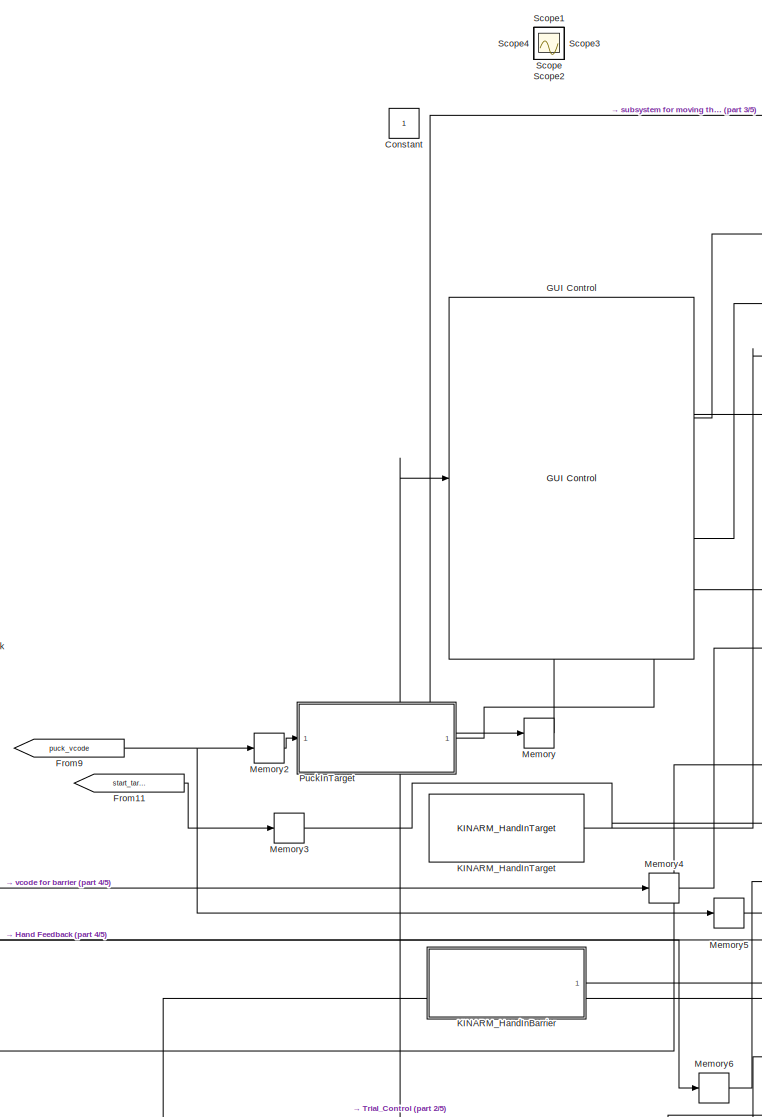
[diagram: root canvas - part 1/5, top left region]
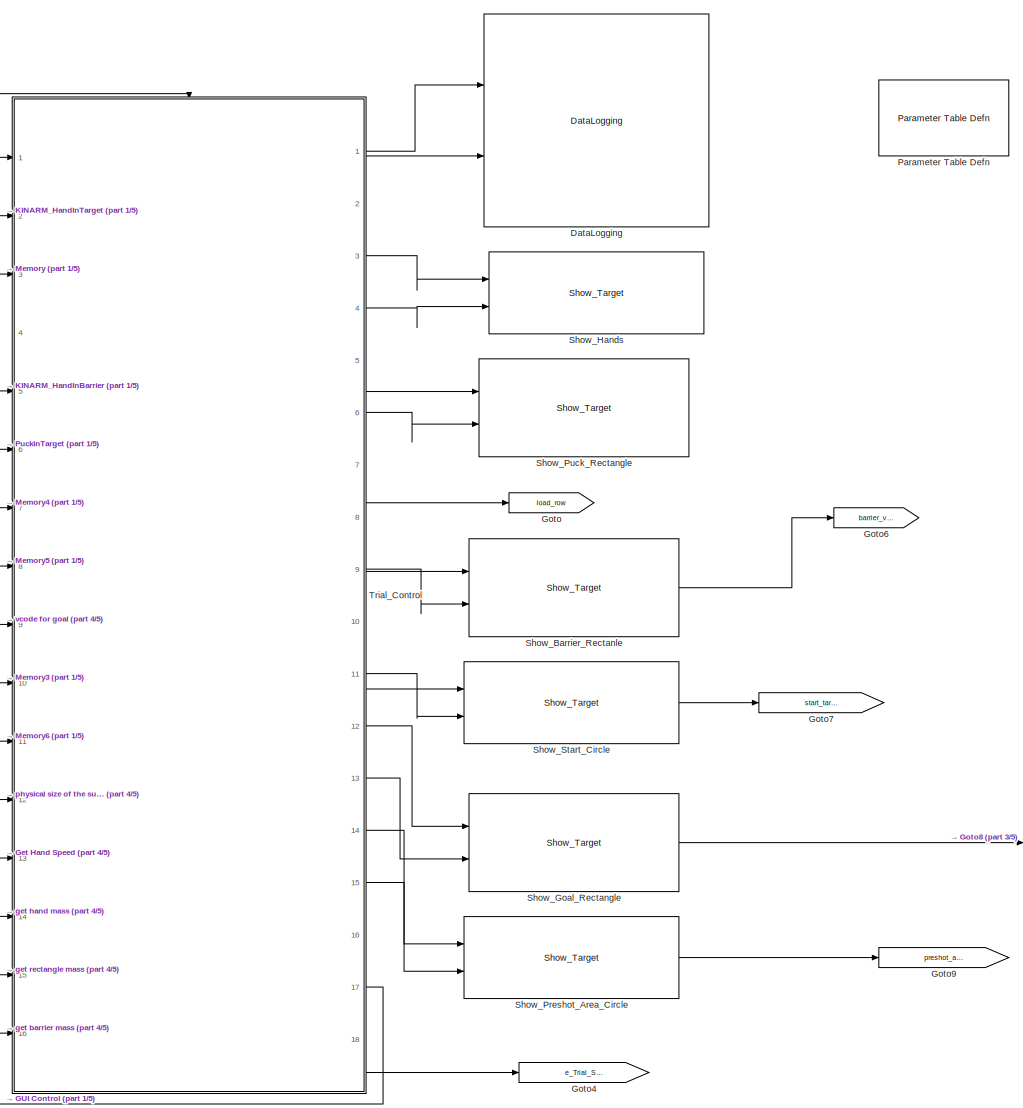
[diagram: root canvas - part 2/5, central region]
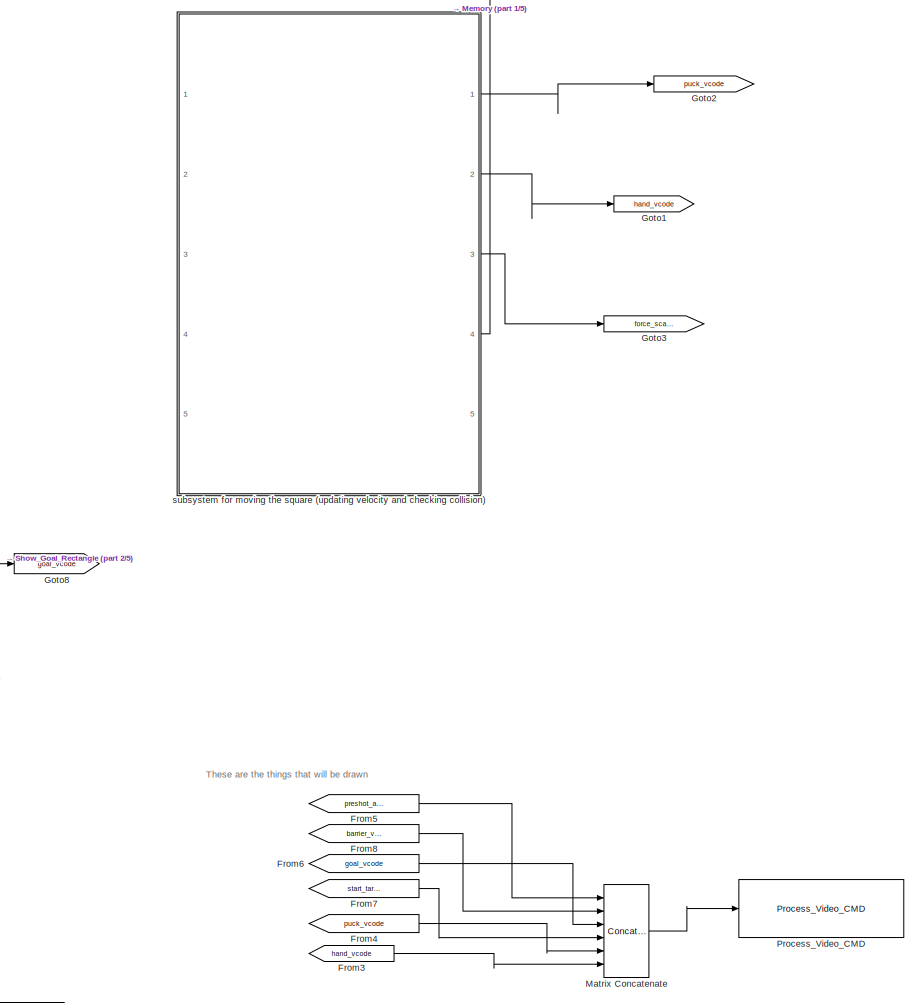
[diagram: root canvas - part 3/5, middle right region]
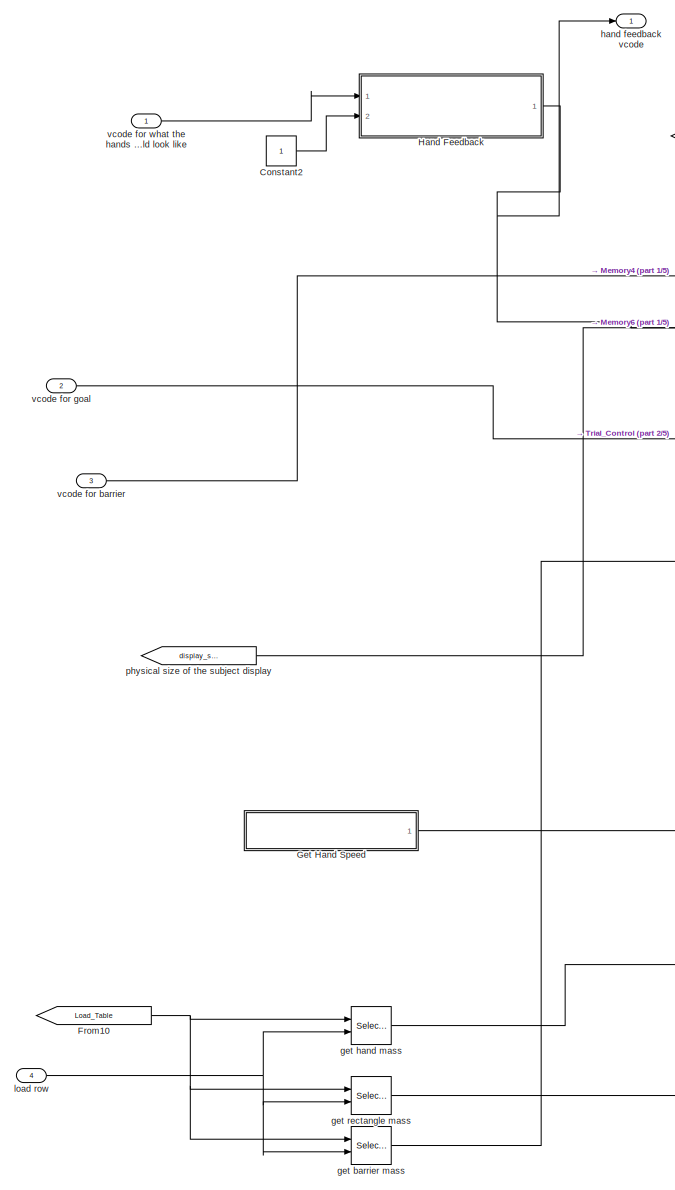
[diagram: root canvas - part 4/5, bottom left region]
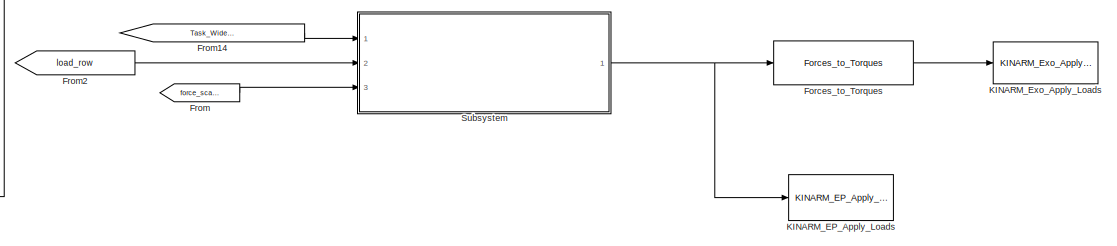
[diagram: root canvas - part 5/5, bottom center region]
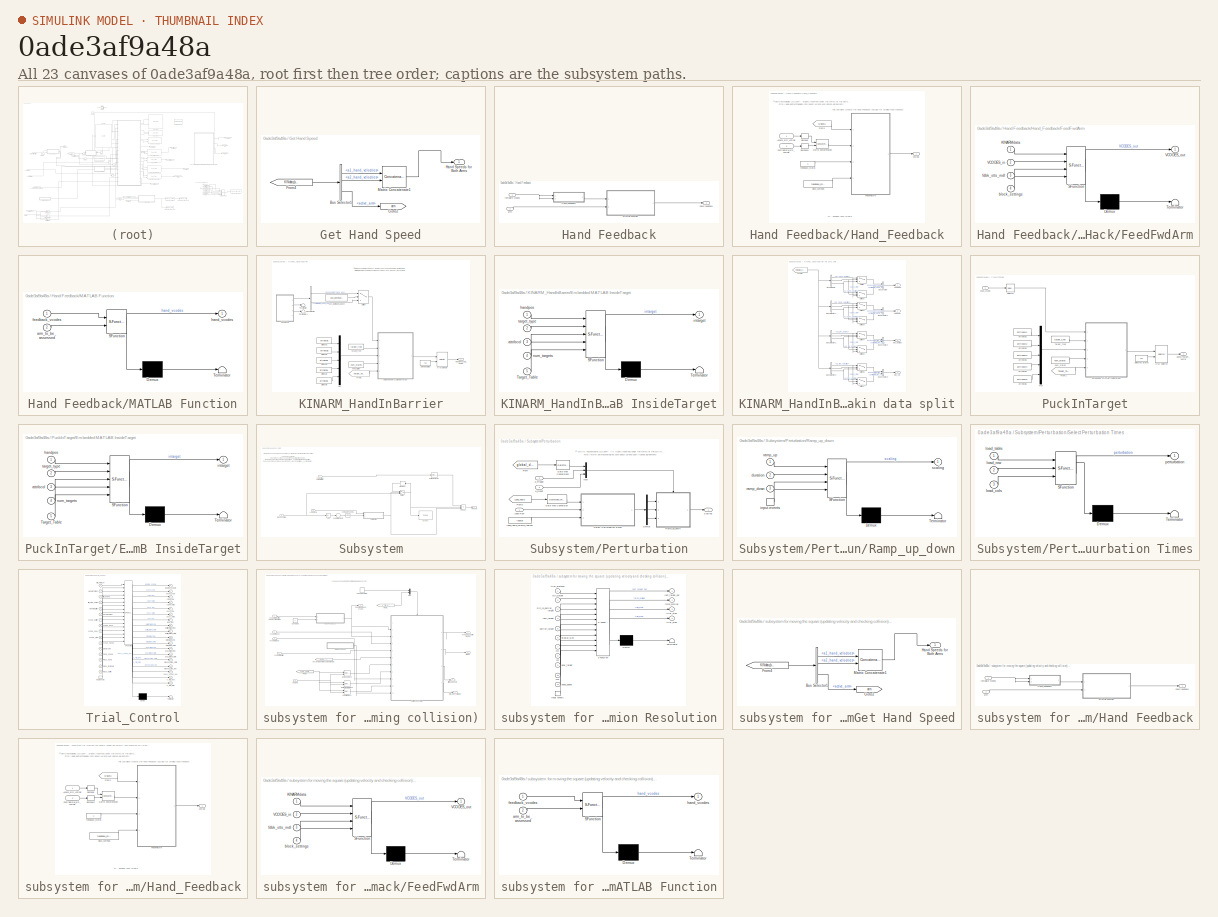
[diagram: thumbnail index - all 23 canvases of the model, root first then tree order]
MODEL slx_0ade3af9a48a
KIND model
CONFIG AbsTol = auto
CONFIG FixedStep = BKIN_STEP_TIME
CONFIG MaxStep = auto
CONFIG MinStep = auto
CONFIG RelTol = 1e-3
CONFIG SampleTimeConstraint = Unconstrained
CONFIG Solver = ode4
CONFIG SolverMode = Auto
CONFIG SolverName = ode4
CONFIG StartFcn =  warndlg('Dexterit-E models cannot run under simulation. Please compile your model and run it from within Dexterit-E.');set_param(bdroot,'SimulationCommand','stop')
CONFIG StartTime = 0.0
CONFIG StopTime = inf
WORKSPACE source: MAT-file member
WORKSPACE BARRIER_ROW = 5
BLOCK [Constant] Constant
  IOType = siggen
BLOCK [Constant] Constant2
BLOCK [Reference] DataLogging  REF=General/DataLogging
  Ports = [2]
  RTWMemSecDataConstants = Inherit from model
  RTWMemSecDataInternal = Inherit from model
  RTWMemSecDataParameters = Inherit from model
  RTWMemSecFuncExecute = Inherit from model
  RTWMemSecFuncInitTerm = Inherit from model
  SourceBlock = General/DataLogging
  SourceType = DataLogging
  ecat_include = on
  log_analog_inputs = off
  log_event_codes = on
  show_time_remaining = off
BLOCK [Reference] Forces_to_Torques  REF=KINARM_loads/Forces_to_Torques
  Ports = [1, 1]
  RTWMemSecDataConstants = Inherit from model
  RTWMemSecDataInternal = Inherit from model
  RTWMemSecDataParameters = Inherit from model
  RTWMemSecFuncExecute = Inherit from model
  RTWMemSecFuncInitTerm = Inherit from model
  SourceBlock = KINARM_loads/Forces_to_Torques
  SourceType = Forces_to_Torques
BLOCK [From] From
  GotoTag = force_scaling
BLOCK [From] From10
  GotoTag = Load_Table
  TagVisibility = global
BLOCK [From] From11
  GotoTag = start_target_vcode
BLOCK [From] From14
  GotoTag = Task_Wide_Parameters
  TagVisibility = global
BLOCK [From] From2
  GotoTag = load_row
BLOCK [From] From3
  GotoTag = hand_vcode
BLOCK [From] From4
  GotoTag = puck_vcode
BLOCK [From] From5
  GotoTag = preshot_area_vcode
BLOCK [From] From6
  GotoTag = goal_vcode
BLOCK [From] From7
  GotoTag = start_target_vcode
BLOCK [From] From8
  GotoTag = barrier_vcode
BLOCK [From] From9
  GotoTag = puck_vcode
BLOCK [Reference] GUI Control  REF=General/GUI Control
  Lcols = 4
  Ports = [1, 2]
  RTWMemSecDataConstants = Inherit from model
  RTWMemSecDataInternal = Inherit from model
  RTWMemSecDataParameters = Inherit from model
  RTWMemSecFuncExecute = Inherit from model
  RTWMemSecFuncInitTerm = Inherit from model
  SourceBlock = General/GUI Control
  SourceType = GUI Control
  Target_Type = 1
  Vcols = 3
  XYcols = [1 2]
  indices_padding = [0 0 0 0;0 0 0 0]
  load_table_rows = 20
  show_repeat_trial_flag = off
  target_table_rows = 64
  target_type_str = Circle
  task_version = 1.0
  tp_table_rows = 100
  use_custom_tp = off
BLOCK [SubSystem] Get Hand Speed
  Ports = [0, 1]
  RequestExecContextInheritance = off
BLOCK [BusSelector] Get Hand Speed/Bus Selector1
  OutputSignals = Robot1.a1_hand_velocities,Robot2.a2_hand_velocities,KINDataGeneral.active_arm
  Ports = [1, 3]
BLOCK [From] Get Hand Speed/From4
  GotoTag = KINdata_bus
  TagVisibility = global
BLOCK [Goto] Get Hand Speed/Goto2
  GotoTag = arm
BLOCK [Outport] Get Hand Speed/Hand Speeds for Both Arms
  IconDisplay = Port number
BLOCK [Concatenate] Get Hand Speed/Matrix Concatenate1
  Mode = Multidimensional array
  Ports = [2, 1]
BLOCK [Goto] Goto
  GotoTag = load_row
BLOCK [Goto] Goto1
  GotoTag = hand_vcode
BLOCK [Goto] Goto2
  GotoTag = puck_vcode
BLOCK [Goto] Goto3
  GotoTag = force_scaling
BLOCK [Goto] Goto4
  GotoTag = e_Trial_Start
BLOCK [Goto] Goto6
  GotoTag = barrier_vcode
BLOCK [Goto] Goto7
  GotoTag = start_target_vcode
BLOCK [Goto] Goto8
  GotoTag = goal_vcode
BLOCK [Goto] Goto9
  GotoTag = preshot_area_vcode
BLOCK [SubSystem] Hand Feedback
  Ports = [2, 1]
  RequestExecContextInheritance = off
BLOCK [SubSystem] Hand Feedback/Hand_Feedback
  AncestorBlock = KINARM_general/Hand_Feedback
  Ports = [2, 1]
  RequestExecContextInheritance = off
BLOCK [Inport] Hand Feedback/Hand_Feedback/Assess_arm_VCODE
  IconDisplay = Port number
BLOCK [Inport] Hand Feedback/Hand_Feedback/Contralateral_arm_VCODE
  IconDisplay = Port number
  Port = 2
BLOCK [SubSystem] Hand Feedback/Hand_Feedback/FeedFwdArm
  ErrorFcn = Stateflow.Translate.translate
  PermitHierarchicalResolution = ParametersOnly
  Ports = [4, 1]
  RTWFileNameOpts = Use function name
  RTWSystemCode = Nonreusable function
  RequestExecContextInheritance = off
  SFBlockType = MATLAB Function
  TreatAsAtomicUnit = on
BLOCK [Demux] Hand Feedback/Hand_Feedback/FeedFwdArm/ Demux 
  Outputs = 1
  Ports = [1, 1]
BLOCK [S-Function] Hand Feedback/Hand_Feedback/FeedFwdArm/ SFunction 
  EnableBusSupport = on
  FunctionName = sf_sfun
  PortCounts = [4 2]
  Ports = [4, 2]
  SFunctionDeploymentMode = off
  Tag = Stateflow S-Function may9js 6
BLOCK [Terminator] Hand Feedback/Hand_Feedback/FeedFwdArm/ Terminator 
BLOCK [Inport] Hand Feedback/Hand_Feedback/FeedFwdArm/KINARMdata
  IconDisplay = Port number
BLOCK [Inport] Hand Feedback/Hand_Feedback/FeedFwdArm/VCODES_in
  IconDisplay = Port number
  Port = 2
BLOCK [Outport] Hand Feedback/Hand_Feedback/FeedFwdArm/VCODES_out
  IconDisplay = Port number
BLOCK [Inport] Hand Feedback/Hand_Feedback/FeedFwdArm/block_settings
  IconDisplay = Port number
  Port = 4
BLOCK [Inport] Hand Feedback/Hand_Feedback/FeedFwdArm/fdbk_stts_mdl
  IconDisplay = Port number
  Port = 3
BLOCK [From] Hand Feedback/Hand_Feedback/From1
  CloseFcn = tagdialog Close
  GotoTag = KINdata
  TagVisibility = global
BLOCK [Concatenate] Hand Feedback/Hand_Feedback/Matrix Concatenation
  Mode = Multidimensional array
  Ports = [2, 1]
BLOCK [Reshape] Hand Feedback/Hand_Feedback/Reshape
  OutputDimensionality = Row vector (2-D)
  Ports = [1, 1]
BLOCK [Reshape] Hand Feedback/Hand_Feedback/Reshape1
  OutputDimensionality = Row vector (2-D)
  Ports = [1, 1]
BLOCK [Outport] Hand Feedback/Hand_Feedback/VCODE
  IconDisplay = Port number
BLOCK [Constant] Hand Feedback/Hand_Feedback/block_settings
  Value = feedback_cntl_src
BLOCK [Constant] Hand Feedback/Hand_Feedback/feedback_status
BLOCK [SubSystem] Hand Feedback/MATLAB Function
  ErrorFcn = Stateflow.Translate.translate
  PermitHierarchicalResolution = ParametersOnly
  Ports = [2, 1]
  RequestExecContextInheritance = off
  SFBlockType = MATLAB Function
  TreatAsAtomicUnit = on
BLOCK [Demux] Hand Feedback/MATLAB Function/ Demux 
  Outputs = 1
  Ports = [1, 1]
BLOCK [S-Function] Hand Feedback/MATLAB Function/ SFunction 
  EnableBusSupport = on
  FunctionName = sf_sfun
  PortCounts = [2 2]
  Ports = [2, 2]
  SFunctionDeploymentMode = off
  Tag = Stateflow S-Function may9js 10
BLOCK [Terminator] Hand Feedback/MATLAB Function/ Terminator 
BLOCK [Inport] Hand Feedback/MATLAB Function/arm_to_be_assessed
  IconDisplay = Port number
  Port = 2
BLOCK [Inport] Hand Feedback/MATLAB Function/feedback_vcodes
  IconDisplay = Port number
BLOCK [Outport] Hand Feedback/MATLAB Function/hand_vcodes
  IconDisplay = Port number
BLOCK [Inport] Hand Feedback/arm
  IconDisplay = Port number
  Port = 2
BLOCK [Outport] Hand Feedback/hand feedback
  IconDisplay = Port number
BLOCK [Inport] Hand Feedback/template vcodes
  IconDisplay = Port number
BLOCK [Reference] KINARM_EP_Apply_Loads  REF=KINARM_EP_loads/KINARM_EP_Apply_Loads
  Ports = [1]
  RTWMemSecDataConstants = Inherit from model
  RTWMemSecDataInternal = Inherit from model
  RTWMemSecDataParameters = Inherit from model
  RTWMemSecFuncExecute = Inherit from model
  RTWMemSecFuncInitTerm = Inherit from model
  SourceBlock = KINARM_EP_loads/KINARM_EP_Apply_Loads
  SourceType = KINARM_EP_Apply_Loads
  down_duration = 1500
  max_force = 20
  up_duration = 1500
BLOCK [Reference] KINARM_Exo_Apply_Loads  REF=KINARM_loads/KINARM_Exo_Apply_Loads
  Ports = [1]
  RTWMemSecDataConstants = Inherit from model
  RTWMemSecDataInternal = Inherit from model
  RTWMemSecDataParameters = Inherit from model
  RTWMemSecFuncExecute = Inherit from model
  RTWMemSecFuncInitTerm = Inherit from model
  SourceBlock = KINARM_loads/KINARM_Exo_Apply_Loads
  SourceType = KINARM_Exo_Apply_Loads
  down_duration = 1500
  limit_motors = off
  max_torque = 5
  up_duration = 1500
BLOCK [SubSystem] KINARM_HandInBarrier
  AncestorBlock = KINARM_general/KINARM_HandInTarget
  Ports = [0, 1]
  RequestExecContextInheritance = off
BLOCK [Selector] KINARM_HandInBarrier/Array Selector
  IndexOptions = Select all,Index vector (port)
  Indices = -1,1
  InputPortWidth = 3
  NumberOfDimensions = 2
  OutputSizes = slselsubs([(-2),(-2)],1),slselsubs([(-2),(-2)],2)
  Ports = [2, 1]
BLOCK [BusSelector] KINARM_HandInBarrier/Bus Selector
  OutputSignals = assessment_hand_pos,contralateral_hand_pos
  Ports = [1, 2]
BLOCK [SubSystem] KINARM_HandInBarrier/Embedded MATLAB InsideTarget
  ErrorFcn = Stateflow.Translate.translate
  PermitHierarchicalResolution = ParametersOnly
  Ports = [5, 1]
  RTWFileNameOpts = Use function name
  RTWSystemCode = Nonreusable function
  RequestExecContextInheritance = off
  SFBlockType = MATLAB Function
  TreatAsAtomicUnit = on
BLOCK [Demux] KINARM_HandInBarrier/Embedded MATLAB InsideTarget/ Demux 
  Outputs = 1
  Ports = [1, 1]
BLOCK [S-Function] KINARM_HandInBarrier/Embedded MATLAB InsideTarget/ SFunction 
  EnableBusSupport = on
  FunctionName = sf_sfun
  PortCounts = [5 2]
  Ports = [5, 2]
  SFunctionDeploymentMode = off
  Tag = Stateflow S-Function may9js 7
BLOCK [Terminator] KINARM_HandInBarrier/Embedded MATLAB InsideTarget/ Terminator 
BLOCK [Inport] KINARM_HandInBarrier/Embedded MATLAB InsideTarget/Target_Table
  IconDisplay = Port number
  Port = 5
BLOCK [Inport] KINARM_HandInBarrier/Embedded MATLAB InsideTarget/attribcol
  IconDisplay = Port number
  Port = 3
BLOCK [Inport] KINARM_HandInBarrier/Embedded MATLAB InsideTarget/handpos
  IconDisplay = Port number
BLOCK [Outport] KINARM_HandInBarrier/Embedded MATLAB InsideTarget/intarget
  IconDisplay = Port number
BLOCK [Inport] KINARM_HandInBarrier/Embedded MATLAB InsideTarget/num_targets
  IconDisplay = Port number
  Port = 4
BLOCK [Inport] KINARM_HandInBarrier/Embedded MATLAB InsideTarget/target_type
  IconDisplay = Port number
  Port = 2
BLOCK [From] KINARM_HandInBarrier/From1
  CloseFcn = tagdialog Close
  GotoTag = Target_Table
  TagVisibility = global
BLOCK [Outport] KINARM_HandInBarrier/HandInTarget_Vector
  IconDisplay = Port number
BLOCK [Mux] KINARM_HandInBarrier/Mux
  DisplayOption = bar
  Inputs = 5
  Ports = [5, 1]
BLOCK [Constant] KINARM_HandInBarrier/Selected States
  Value = [1]
BLOCK [Switch] KINARM_HandInBarrier/Switch
  Criteria = u2 > Threshold
  InputSameDT = off
  SaturateOnIntegerOverflow = off
BLOCK [Constant] KINARM_HandInBarrier/Target_Type
  Value = target_type
BLOCK [Terminator] KINARM_HandInBarrier/Terminator
BLOCK [Terminator] KINARM_HandInBarrier/Terminator1
BLOCK [Constant] KINARM_HandInBarrier/Use_Dominant_Hand?
  Value = use_dominant_hand
BLOCK [Constant] KINARM_HandInBarrier/attribcol1
  Value = attribcol1
BLOCK [Constant] KINARM_HandInBarrier/attribcol2
  Value = attribcol2
BLOCK [Constant] KINARM_HandInBarrier/attribcol3
  Value = attribcol3
BLOCK [Constant] KINARM_HandInBarrier/attribcol4
  Value = attribcol4
BLOCK [Constant] KINARM_HandInBarrier/attribcol5
  Value = attribcol5
BLOCK [SubSystem] KINARM_HandInBarrier/kin data split
  Ports = [0, 4]
  RequestExecContextInheritance = off
BLOCK [BusCreator] KINARM_HandInBarrier/kin data split/Bus Creator
  DisplayOption = bar
  InheritFromInputs = on
  Inputs = 2
  Ports = [2, 1]
BLOCK [BusCreator] KINARM_HandInBarrier/kin data split/Bus Creator1
  DisplayOption = bar
  InheritFromInputs = on
  Inputs = 2
  Ports = [2, 1]
BLOCK [BusCreator] KINARM_HandInBarrier/kin data split/Bus Creator2
  DisplayOption = bar
  InheritFromInputs = on
  Inputs = 2
  Ports = [2, 1]
BLOCK [BusCreator] KINARM_HandInBarrier/kin data split/Bus Creator3
  DisplayOption = bar
  InheritFromInputs = on
  Inputs = 2
  Ports = [2, 1]
BLOCK [BusSelector] KINARM_HandInBarrier/kin data split/Bus Selector
  OutputSignals = Robot2.a2_hand_position,KINDataGeneral.active_arm,Robot1.a1_hand_position
  Ports = [1, 3]
BLOCK [BusSelector] KINARM_HandInBarrier/kin data split/Bus Selector1
  OutputSignals = Robot2.a2_hand_velocities,KINDataGeneral.active_arm,Robot1.a1_hand_velocities
  Ports = [1, 3]
BLOCK [BusSelector] KINARM_HandInBarrier/kin data split/Bus Selector2
  OutputSignals = Robot2.a2_link_angles,KINDataGeneral.active_arm,Robot1.a1_link_angles
  Ports = [1, 3]
BLOCK [BusSelector] KINARM_HandInBarrier/kin data split/Bus Selector3
  OutputSignals = Robot2.a2_link_velocities,KINDataGeneral.active_arm,Robot1.a1_link_velocities
  Ports = [1, 3]
BLOCK [From] KINARM_HandInBarrier/kin data split/From1
  CloseFcn = tagdialog Close
  GotoTag = KINdata_bus
  TagVisibility = global
BLOCK [Switch] KINARM_HandInBarrier/kin data split/Switch
  Criteria = u2 > Threshold
  InputSameDT = off
  SaturateOnIntegerOverflow = off
  Threshold = 1
BLOCK [Switch] KINARM_HandInBarrier/kin data split/Switch1
  Criteria = u2 > Threshold
  InputSameDT = off
  SaturateOnIntegerOverflow = off
  Threshold = 1
BLOCK [Switch] KINARM_HandInBarrier/kin data split/Switch2
  Criteria = u2 > Threshold
  InputSameDT = off
  SaturateOnIntegerOverflow = off
  Threshold = 1
BLOCK [Switch] KINARM_HandInBarrier/kin data split/Switch3
  Criteria = u2 > Threshold
  InputSameDT = off
  SaturateOnIntegerOverflow = off
  Threshold = 1
BLOCK [Switch] KINARM_HandInBarrier/kin data split/Switch4
  Criteria = u2 > Threshold
  InputSameDT = off
  SaturateOnIntegerOverflow = off
  Threshold = 1
BLOCK [Switch] KINARM_HandInBarrier/kin data split/Switch5
  Criteria = u2 > Threshold
  InputSameDT = off
  SaturateOnIntegerOverflow = off
  Threshold = 1
BLOCK [Switch] KINARM_HandInBarrier/kin data split/Switch6
  Criteria = u2 > Threshold
  InputSameDT = off
  SaturateOnIntegerOverflow = off
  Threshold = 1
BLOCK [Switch] KINARM_HandInBarrier/kin data split/Switch7
  Criteria = u2 > Threshold
  InputSameDT = off
  SaturateOnIntegerOverflow = off
  Threshold = 1
BLOCK [Outport] KINARM_HandInBarrier/kin data split/hand pos
  IconDisplay = Port number
BLOCK [Outport] KINARM_HandInBarrier/kin data split/hand vel
  IconDisplay = Port number
  Port = 2
BLOCK [Outport] KINARM_HandInBarrier/kin data split/link_angles
  IconDisplay = Port number
  Port = 3
BLOCK [Outport] KINARM_HandInBarrier/kin data split/link_vel
  IconDisplay = Port number
  Port = 4
BLOCK [Constant] KINARM_HandInBarrier/num_states
  Value = num_states
BLOCK [Reference] KINARM_HandInTarget  REF=KINARM_general/KINARM_HandInTarget
  Ports = [0, 1]
  RTWMemSecDataConstants = Inherit from model
  RTWMemSecDataInternal = Inherit from model
  RTWMemSecDataParameters = Inherit from model
  RTWMemSecFuncExecute = Inherit from model
  RTWMemSecFuncInitTerm = Inherit from model
  SourceBlock = KINARM_general/KINARM_HandInTarget
  SourceType = KINARM_HandInTarget
  attribcol1 = [RADIUS_LOG]
  attribcol2 = [0]
  attribcol3 = [0]
  attribcol4 = [0]
  attribcol5 = [0]
  num_states = 1
  target_type = Circle
  use_dominant_hand = on
BLOCK [Concatenate] Matrix Concatenate
  Mode = Multidimensional array
  NumInputs = 6
  Ports = [6, 1]
BLOCK [Memory] Memory
BLOCK [Memory] Memory2
BLOCK [Memory] Memory3
BLOCK [Memory] Memory4
BLOCK [Memory] Memory5
BLOCK [Memory] Memory6
BLOCK [Reference] Parameter Table Defn  REF=General/Parameter Table Defn
  Ports = []
  RTWMemSecDataConstants = Inherit from model
  RTWMemSecDataInternal = Inherit from model
  RTWMemSecDataParameters = Inherit from model
  RTWMemSecFuncExecute = Inherit from model
  RTWMemSecFuncInitTerm = Inherit from model
  ShowInLibBrowser = 0
  SourceBlock = General/Parameter Table Defn
  UserDataPersistent = on
BLOCK [Reference] Process_Video_CMD  REF=Video/Process_Video_CMD
  Ports = [1]
  RTWMemSecDataConstants = Inherit from model
  RTWMemSecDataInternal = Inherit from model
  RTWMemSecDataParameters = Inherit from model
  RTWMemSecFuncExecute = Inherit from model
  RTWMemSecFuncInitTerm = Inherit from model
  SourceBlock = Video/Process_Video_CMD
  SourceType = Process_Video_CMD
  video_delay = 0
BLOCK [SubSystem] PuckInTarget
  AncestorBlock = KINARM_general/KINARM_HandInTarget
  Ports = [1, 1]
  RequestExecContextInheritance = off
BLOCK [Selector] PuckInTarget/Array Selector
  IndexOptions = Select all,Index vector (port)
  Indices = -1,1
  InputPortWidth = 3
  NumberOfDimensions = 2
  OutputSizes = slselsubs([(-2),(-2)],1),slselsubs([(-2),(-2)],2)
  Ports = [2, 1]
BLOCK [SubSystem] PuckInTarget/Embedded MATLAB InsideTarget
  ErrorFcn = Stateflow.Translate.translate
  PermitHierarchicalResolution = ParametersOnly
  Ports = [5, 1]
  RTWFileNameOpts = Use function name
  RTWSystemCode = Nonreusable function
  RequestExecContextInheritance = off
  SFBlockType = MATLAB Function
  TreatAsAtomicUnit = on
BLOCK [Demux] PuckInTarget/Embedded MATLAB InsideTarget/ Demux 
  Outputs = 1
  Ports = [1, 1]
BLOCK [S-Function] PuckInTarget/Embedded MATLAB InsideTarget/ SFunction 
  EnableBusSupport = on
  FunctionName = sf_sfun
  PortCounts = [5 2]
  Ports = [5, 2]
  SFunctionDeploymentMode = off
  Tag = Stateflow S-Function may9js 5
BLOCK [Terminator] PuckInTarget/Embedded MATLAB InsideTarget/ Terminator 
BLOCK [Inport] PuckInTarget/Embedded MATLAB InsideTarget/Target_Table
  IconDisplay = Port number
  Port = 5
BLOCK [Inport] PuckInTarget/Embedded MATLAB InsideTarget/attribcol
  IconDisplay = Port number
  Port = 3
BLOCK [Inport] PuckInTarget/Embedded MATLAB InsideTarget/handpos
  IconDisplay = Port number
BLOCK [Outport] PuckInTarget/Embedded MATLAB InsideTarget/intarget
  IconDisplay = Port number
BLOCK [Inport] PuckInTarget/Embedded MATLAB InsideTarget/num_targets
  IconDisplay = Port number
  Port = 4
BLOCK [Inport] PuckInTarget/Embedded MATLAB InsideTarget/target_type
  IconDisplay = Port number
  Port = 2
BLOCK [From] PuckInTarget/From1
  CloseFcn = tagdialog Close
  GotoTag = Target_Table
  TagVisibility = global
BLOCK [Outport] PuckInTarget/HandInTarget_Vector
  IconDisplay = Port number
BLOCK [Mux] PuckInTarget/Mux
  DisplayOption = bar
  Inputs = 5
  Ports = [5, 1]
BLOCK [Constant] PuckInTarget/Selected States
  Value = [1]
BLOCK [Selector] PuckInTarget/Selector
  IndexOptions = Index vector (dialog),Index vector (dialog)
  Indices = 1,[3,4]
  InputPortWidth = 3
  NumberOfDimensions = 2
  OutputSizes = 1,1
  Ports = [1, 1]
BLOCK [Constant] PuckInTarget/Target_Type
  Value = target_type
BLOCK [Constant] PuckInTarget/attribcol1
  Value = attribcol1
BLOCK [Constant] PuckInTarget/attribcol2
  Value = attribcol2
BLOCK [Constant] PuckInTarget/attribcol3
  Value = attribcol3
BLOCK [Constant] PuckInTarget/attribcol4
  Value = attribcol4
BLOCK [Constant] PuckInTarget/attribcol5
  Value = attribcol5
BLOCK [Constant] PuckInTarget/num_states
  Value = num_states
BLOCK [Inport] PuckInTarget/puck_vcode
  IconDisplay = Port number
  PortDimensions = [1,70]
BLOCK [Scope] Scope
  DataFormat = StructureWithTime
  Decimation = 1
  Floating = off
  Grid = on
  IOType = viewer
  LimitDataPoints = off
  MaxDataPoints = 5000
  NumInputPorts = 1
  Ports = []
  SampleInput = off
  SampleTime = -1
  SaveName = ScopeData
  SaveToWorkspace = off
  ShowLegends = off
  TickLabels = OneTimeTick
  TimeRange = auto
  YMax = 10.00000
  YMin = -10.00000
  ZoomMode = on
BLOCK [Scope] Scope1
  DataFormat = StructureWithTime
  Decimation = 1
  Floating = off
  Grid = on
  IOType = viewer
  LimitDataPoints = off
  MaxDataPoints = 5000
  NumInputPorts = 1
  Ports = []
  SampleInput = off
  SampleTime = -1
  SaveName = ScopeData1
  SaveToWorkspace = off
  ShowLegends = off
  TickLabels = OneTimeTick
  TimeRange = auto
  YMax = 10.00000
  YMin = -10.00000
  ZoomMode = on
BLOCK [Scope] Scope2
  DataFormat = StructureWithTime
  Decimation = 1
  Floating = off
  Grid = on
  IOType = viewer
  LimitDataPoints = off
  MaxDataPoints = 5000
  NumInputPorts = 1
  Ports = []
  SampleInput = off
  SampleTime = -1
  SaveName = ScopeData2
  SaveToWorkspace = off
  ShowLegends = off
  TickLabels = OneTimeTick
  TimeRange = auto
  YMax = 10.00000
  YMin = -10.00000
  ZoomMode = on
BLOCK [Scope] Scope3
  DataFormat = StructureWithTime
  Decimation = 1
  Floating = off
  Grid = on
  IOType = viewer
  LimitDataPoints = off
  MaxDataPoints = 5000
  NumInputPorts = 1
  Ports = []
  SampleInput = off
  SampleTime = -1
  SaveName = ScopeData3
  SaveToWorkspace = off
  ShowLegends = off
  TickLabels = OneTimeTick
  TimeRange = auto
  YMax = 10.00000
  YMin = -10.00000
  ZoomMode = on
BLOCK [Scope] Scope4
  DataFormat = StructureWithTime
  Decimation = 1
  Floating = off
  Grid = on
  IOType = viewer
  LimitDataPoints = off
  MaxDataPoints = 5000
  NumInputPorts = 1
  Ports = []
  SampleInput = off
  SampleTime = -1
  SaveName = ScopeData4
  SaveToWorkspace = off
  ShowLegends = off
  TickLabels = OneTimeTick
  TimeRange = auto
  YMax = 10.00000
  YMin = -10.00000
  ZoomMode = on
BLOCK [Reference] Show_Barrier_Rectanle  REF=Video/Show_Target
  Ports = [2, 1]
  RTWMemSecDataConstants = Inherit from model
  RTWMemSecDataInternal = Inherit from model
  RTWMemSecDataParameters = Inherit from model
  RTWMemSecFuncExecute = Inherit from model
  RTWMemSecFuncInitTerm = Inherit from model
  SourceBlock = Video/Show_Target
  SourceType = Show_Target
  attribcol1 = [FIRST_STATE_FILL RECT_STROKE RECT_STROKE_W WIDTH HEIGHT ROTATION]
  attribcol2 = [SECOND_STATE_FILL RECT_STROKE RECT_STROKE_W WIDTH HEIGHT ROTATION]
  attribcol3 = [0 0 0 0 0 0]
  attribcol4 = [0 0 0 0 0 0]
  attribcol5 = [0 0 0 0 0 0]
  num_col = 6
  num_states = 2
  opacity = 100
  source = dialog
  stateindices_padding = [0 0 0 0 0;0 0 0 0 0;0 0 0 0 0;0 0 0 0 0;0 0 0 0 0]
  target_display = Both subject and operator displays
  target_type = Rectangle
BLOCK [Reference] Show_Goal_Rectangle  REF=Video/Show_Target
  Ports = [2, 1]
  RTWMemSecDataConstants = Inherit from model
  RTWMemSecDataInternal = Inherit from model
  RTWMemSecDataParameters = Inherit from model
  RTWMemSecFuncExecute = Inherit from model
  RTWMemSecFuncInitTerm = Inherit from model
  SourceBlock = Video/Show_Target
  SourceType = Show_Target
  attribcol1 = [INVISIBLE_FILL RECT_STROKE RECT_STROKE_W WIDTH HEIGHT ROTATION]
  attribcol2 = [FIRST_STATE_FILL RECT_STROKE RECT_STROKE_W WIDTH HEIGHT ROTATION]
  attribcol3 = [SECOND_STATE_FILL RECT_STROKE RECT_STROKE_W WIDTH HEIGHT ROTATION]
  attribcol4 = [0 0 0 0 0 0]
  attribcol5 = [0 0 0 0 0 0]
  num_col = 6
  num_states = 3
  opacity = 100
  source = dialog
  stateindices_padding = [0 0 0 0 0;0 0 0 0 0;0 0 0 0 0;0 0 0 0 0;0 0 0 0 0]
  target_display = Both subject and operator displays
  target_type = Rectangle
BLOCK [Reference] Show_Hands  REF=Video/Show_Target
  Ports = [2, 1]
  RTWMemSecDataConstants = Inherit from model
  RTWMemSecDataInternal = Inherit from model
  RTWMemSecDataParameters = Inherit from model
  RTWMemSecFuncExecute = Inherit from model
  RTWMemSecFuncInitTerm = Inherit from model
  SourceBlock = Video/Show_Target
  SourceType = Show_Target
  attribcol1 = [FIRST_STATE_FILL CIRCLE_STROKE CIRCLE_STROKE_W WIDTH]
  attribcol2 = [SECOND_STATE_FILL CIRCLE_STROKE CIRCLE_STROKE_W WIDTH]
  attribcol3 = [0 0 0 0]
  attribcol4 = [0 0 0 0]
  attribcol5 = [0 0 0 0]
  num_col = 4
  num_states = 2
  opacity = 100
  source = dialog
  stateindices_padding = [0 0 0 0 0 0 0;0 0 0 0 0 0 0;0 0 0 0 0 0 0;0 0 0 0 0 0 0;0 0 0 0 0 0 0]
  target_display = Both subject and operator displays
  target_type = Circle
BLOCK [Reference] Show_Preshot_Area_Circle  REF=Video/Show_Target
  Ports = [2, 1]
  RTWMemSecDataConstants = Inherit from model
  RTWMemSecDataInternal = Inherit from model
  RTWMemSecDataParameters = Inherit from model
  RTWMemSecFuncExecute = Inherit from model
  RTWMemSecFuncInitTerm = Inherit from model
  SourceBlock = Video/Show_Target
  SourceType = Show_Target
  attribcol1 = [INVISIBLE_FILL CIRCLE_STROKE CIRCLE_STROKE_W WIDTH]
  attribcol2 = [FIRST_STATE_FILL CIRCLE_STROKE CIRCLE_STROKE_W WIDTH]
  attribcol3 = [SECOND_STATE_FILL CIRCLE_STROKE CIRCLE_STROKE_W WIDTH]
  attribcol4 = [0 0 0 0]
  attribcol5 = [0 0 0 0]
  num_col = 4
  num_states = 3
  opacity = 100
  source = dialog
  stateindices_padding = [0 0 0 0 0 0 0;0 0 0 0 0 0 0;0 0 0 0 0 0 0;0 0 0 0 0 0 0;0 0 0 0 0 0 0]
  target_display = Both subject and operator displays
  target_type = Circle
BLOCK [Reference] Show_Puck_Rectangle  REF=Video/Show_Target
  Ports = [2, 1]
  RTWMemSecDataConstants = Inherit from model
  RTWMemSecDataInternal = Inherit from model
  RTWMemSecDataParameters = Inherit from model
  RTWMemSecFuncExecute = Inherit from model
  RTWMemSecFuncInitTerm = Inherit from model
  SourceBlock = Video/Show_Target
  SourceType = Show_Target
  attribcol1 = [INVISIBLE_FILL RECT_STROKE RECT_STROKE_W WIDTH HEIGHT ROTATION]
  attribcol2 = [FIRST_STATE_FILL RECT_STROKE RECT_STROKE_W WIDTH HEIGHT ROTATION]
  attribcol3 = [SECOND_STATE_FILL RECT_STROKE RECT_STROKE_W WIDTH HEIGHT ROTATION]
  attribcol4 = [0 0 0 0 0 0]
  attribcol5 = [0 0 0 0 0 0]
  num_col = 6
  num_states = 3
  opacity = 100
  source = dialog
  stateindices_padding = [0 0 0 0 0;0 0 0 0 0;0 0 0 0 0;0 0 0 0 0;0 0 0 0 0]
  target_display = Both subject and operator displays
  target_type = Rectangle
BLOCK [Reference] Show_Start_Circle  REF=Video/Show_Target
  Ports = [2, 1]
  RTWMemSecDataConstants = Inherit from model
  RTWMemSecDataInternal = Inherit from model
  RTWMemSecDataParameters = Inherit from model
  RTWMemSecFuncExecute = Inherit from model
  RTWMemSecFuncInitTerm = Inherit from model
  SourceBlock = Video/Show_Target
  SourceType = Show_Target
  attribcol1 = [INVISIBLE_FILL CIRCLE_STROKE CIRCLE_STROKE_W WIDTH]
  attribcol2 = [FIRST_STATE_FILL CIRCLE_STROKE CIRCLE_STROKE_W WIDTH]
  attribcol3 = [SECOND_STATE_FILL CIRCLE_STROKE CIRCLE_STROKE_W WIDTH]
  attribcol4 = [0 0 0 0]
  attribcol5 = [0 0 0 0]
  num_col = 4
  num_states = 3
  opacity = 100
  source = dialog
  stateindices_padding = [0 0 0 0 0 0 0;0 0 0 0 0 0 0;0 0 0 0 0 0 0;0 0 0 0 0 0 0;0 0 0 0 0 0 0]
  target_display = Both subject and operator displays
  target_type = Circle
BLOCK [SubSystem] Subsystem
  Ports = [3, 1]
  RequestExecContextInheritance = off
BLOCK [Abs] Subsystem/Abs
  SaturateOnIntegerOverflow = off
BLOCK [Reference] Subsystem/Compare To Zero1  REF=simulink/Logic and Bit
Operations/Compare
To Zero
  OutDataTypeStr = uint8
  Ports = [1, 1]
  RTWMemSecDataConstants = Inherit from model
  RTWMemSecDataInternal = Inherit from model
  RTWMemSecDataParameters = Inherit from model
  RTWMemSecFuncExecute = Inherit from model
  RTWMemSecFuncInitTerm = Inherit from model
  SourceBlock = simulink/Logic and Bit\nOperations/Compare\nTo Zero
  SourceType = Compare To Zero
  ZeroCross = off
  relop = ~=
BLOCK [Inport] Subsystem/Load Row
  IconDisplay = Port number
  Port = 2
BLOCK [Memory] Subsystem/Memory3
  InheritSampleTime = on
BLOCK [SubSystem] Subsystem/Perturbation
  AncestorBlock = KINARM_loads/Perturbation
  Ports = [3, 1]
  RequestExecContextInheritance = off
BLOCK [DataTypeConversion] Subsystem/Perturbation/Data Type Conversion
  RndMeth = Floor
  SaturateOnIntegerOverflow = off
BLOCK [DataTypeConversion] Subsystem/Perturbation/Data Type Conversion2
  RndMeth = Floor
  SaturateOnIntegerOverflow = off
BLOCK [Demux] Subsystem/Perturbation/Demux
  DisplayOption = bar
  Outputs = 3
  Ports = [1, 3]
BLOCK [From] Subsystem/Perturbation/From
  CloseFcn = tagdialog Close
  GotoTag = global_clock
  TagVisibility = global
BLOCK [From] Subsystem/Perturbation/From2
  CloseFcn = tagdialog Close
  GotoTag = Load_Table
  TagVisibility = global
BLOCK [Inport] Subsystem/Perturbation/Load Row
  IconDisplay = Port number
BLOCK [Mux] Subsystem/Perturbation/Mux
  DisplayOption = bar
  Inputs = 3
  Ports = [3, 1]
BLOCK [SubSystem] Subsystem/Perturbation/Ramp_up_down
  ErrorFcn = Stateflow.Translate.translate
  PermitHierarchicalResolution = ParametersOnly
  Ports = [3, 1, 0, 1]
  RequestExecContextInheritance = off
  SFBlockType = Chart
  TreatAsAtomicUnit = on
BLOCK [Demux] Subsystem/Perturbation/Ramp_up_down/ Demux 
  Outputs = 1
  Ports = [1, 1]
BLOCK [S-Function] Subsystem/Perturbation/Ramp_up_down/ SFunction 
  EnableBusSupport = on
  FunctionName = sf_sfun
  PortCounts = [4 2]
  Ports = [4, 2]
  SFunctionDeploymentMode = off
  Tag = Stateflow S-Function may9js 8
BLOCK [Terminator] Subsystem/Perturbation/Ramp_up_down/ Terminator 
BLOCK [TriggerPort] Subsystem/Perturbation/Ramp_up_down/ input events 
  Ports = [0, 1]
  ShowOutputPort = on
  TriggerType = either
BLOCK [Inport] Subsystem/Perturbation/Ramp_up_down/duration
  IconDisplay = Port number
  Port = 2
BLOCK [Inport] Subsystem/Perturbation/Ramp_up_down/ramp_down
  IconDisplay = Port number
  Port = 3
BLOCK [Inport] Subsystem/Perturbation/Ramp_up_down/ramp_up
  IconDisplay = Port number
BLOCK [Outport] Subsystem/Perturbation/Ramp_up_down/scaling
  IconDisplay = Port number
BLOCK [Outport] Subsystem/Perturbation/Scaling
  IconDisplay = Port number
BLOCK [SubSystem] Subsystem/Perturbation/Select Perturbation Times
  ErrorFcn = Stateflow.Translate.translate
  PermitHierarchicalResolution = ParametersOnly
  Ports = [3, 1]
  RequestExecContextInheritance = off
  SFBlockType = MATLAB Function
  TreatAsAtomicUnit = on
BLOCK [Demux] Subsystem/Perturbation/Select Perturbation Times/ Demux 
  Outputs = 1
  Ports = [1, 1]
BLOCK [S-Function] Subsystem/Perturbation/Select Perturbation Times/ SFunction 
  EnableBusSupport = on
  FunctionName = sf_sfun
  PortCounts = [3 2]
  Ports = [3, 2]
  SFunctionDeploymentMode = off
  Tag = Stateflow S-Function may9js 9
BLOCK [Terminator] Subsystem/Perturbation/Select Perturbation Times/ Terminator 
BLOCK [Inport] Subsystem/Perturbation/Select Perturbation Times/load_cols
  IconDisplay = Port number
  Port = 3
BLOCK [Inport] Subsystem/Perturbation/Select Perturbation Times/load_row
  IconDisplay = Port number
  Port = 2
BLOCK [Inport] Subsystem/Perturbation/Select Perturbation Times/load_table
  IconDisplay = Port number
BLOCK [Outport] Subsystem/Perturbation/Select Perturbation Times/perturbation
  IconDisplay = Port number
BLOCK [Inport] Subsystem/Perturbation/e_Reset
  IconDisplay = Port number
  Port = 3
BLOCK [Inport] Subsystem/Perturbation/e_Trigger
  IconDisplay = Port number
  Port = 2
BLOCK [Constant] Subsystem/Perturbation/load_table_column_indices
  Value = loadcol
BLOCK [Product] Subsystem/Product
  InputSameDT = off
  Inputs = 3
  OutDataTypeStr = Inherit: Inherit via internal rule
  Ports = [3, 1]
  RndMeth = Floor
  SaturateOnIntegerOverflow = off
BLOCK [Reference] Subsystem/Scope 1  REF=slrtlib/Displays and
Logging/Scope 
  Ports = [1]
  RTWMemSecDataConstants = Inherit from model
  RTWMemSecDataInternal = Inherit from model
  RTWMemSecDataParameters = Inherit from model
  RTWMemSecFuncExecute = Inherit from model
  RTWMemSecFuncInitTerm = Inherit from model
  SourceBlock = slrtlib/Displays and\nLogging/Scope
  SourceType = xpcscopeblock
  autorestart = off
  autostart = off
  dynamicfilemode = off
  filename = data.dat
  formatstr = '%15.6f'
  grid = on
  interleave = 1
  maxwritefilesize = 512*1024^2
  mode = Lazy
  noprepostsamples = 0
  nosamples = 250
  scopeno = 4
  scopetype = Target
  triggerlevel = 0.0
  triggermode = FreeRun
  triggersample = 0
  triggerscope = 1
  triggersignal = 1
  triggerslope = Either
  trigsignalfromport = off
  viewmode = Graphical redraw
  writesize = 512
  ylimits = [0,0]
BLOCK [Sum] Subsystem/Sum of Elements
  InputSameDT = off
  Inputs = +
  OutDataTypeStr = Inherit: Inherit via internal rule
  Ports = [1, 1]
  SaturateOnIntegerOverflow = off
BLOCK [Switch] Subsystem/Switch
  Criteria = u2 > Threshold
  InputSameDT = off
  SaturateOnIntegerOverflow = off
BLOCK [Inport] Subsystem/Task Wide Parameters
  IconDisplay = Port number
BLOCK [Outport] Subsystem/forces (N)
  IconDisplay = Port number
BLOCK [Inport] Subsystem/forces scaling
  IconDisplay = Port number
  Port = 3
BLOCK [Selector] Subsystem/get fudge factor
  IndexOptions = Index vector (dialog)
  Indices = FORCE_MULTIPLIER
  OutputSizes = 1
  Ports = [1, 1]
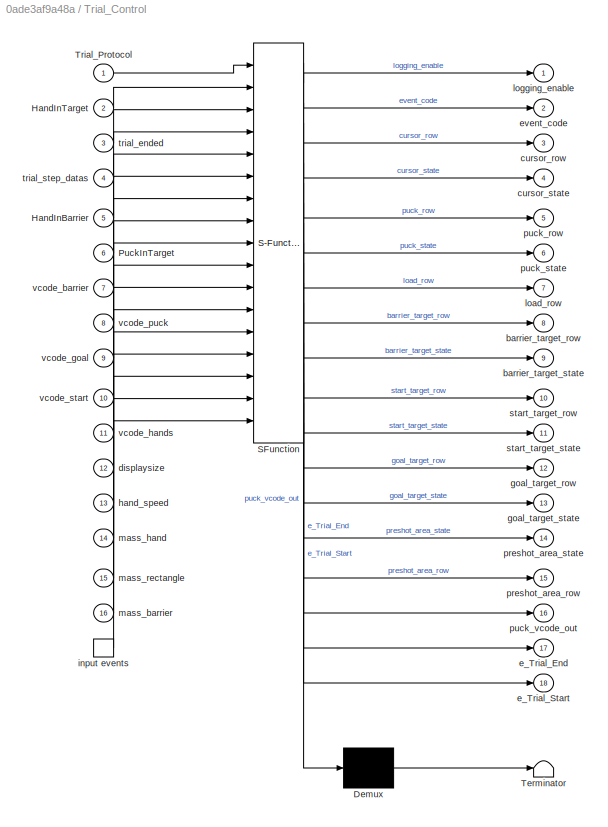
BLOCK [SubSystem] Trial_Control
  ErrorFcn = Stateflow.Translate.translate
  PermitHierarchicalResolution = ParametersOnly
  Ports = [16, 18, 0, 1]
  RequestExecContextInheritance = off
  SFBlockType = Chart
  TreatAsAtomicUnit = on
BLOCK [Demux] Trial_Control/ Demux 
  Outputs = 1
  Ports = [1, 1]
BLOCK [S-Function] Trial_Control/ SFunction 
  EnableBusSupport = on
  FunctionName = sf_sfun
  PortCounts = [17 19]
  Ports = [17, 19]
  SFunctionDeploymentMode = off
  Tag = Stateflow S-Function may9js 3
BLOCK [Terminator] Trial_Control/ Terminator 
BLOCK [Inport] Trial_Control/HandInBarrier
  IconDisplay = Port number
  Port = 5
BLOCK [Inport] Trial_Control/HandInTarget
  IconDisplay = Port number
  Port = 2
BLOCK [Inport] Trial_Control/PuckInTarget
  IconDisplay = Port number
  Port = 6
BLOCK [Inport] Trial_Control/Trial_Protocol
  IconDisplay = Port number
BLOCK [Outport] Trial_Control/barrier_target_row
  IconDisplay = Port number
  Port = 8
BLOCK [Outport] Trial_Control/barrier_target_state
  IconDisplay = Port number
  Port = 9
BLOCK [Outport] Trial_Control/cursor_row
  IconDisplay = Port number
  Port = 3
BLOCK [Outport] Trial_Control/cursor_state
  IconDisplay = Port number
  Port = 4
BLOCK [Inport] Trial_Control/displaysize
  IconDisplay = Port number
  Port = 12
BLOCK [Outport] Trial_Control/e_Trial_End
  IconDisplay = Port number
  Port = 17
BLOCK [Outport] Trial_Control/e_Trial_Start
  IconDisplay = Port number
  Port = 18
BLOCK [Outport] Trial_Control/event_code
  IconDisplay = Port number
  Port = 2
BLOCK [Outport] Trial_Control/goal_target_row
  IconDisplay = Port number
  Port = 12
BLOCK [Outport] Trial_Control/goal_target_state
  IconDisplay = Port number
  Port = 13
BLOCK [Inport] Trial_Control/hand_speed
  IconDisplay = Port number
  Port = 13
BLOCK [TriggerPort] Trial_Control/input events
  Ports = [0, 1]
  ShowOutputPort = on
  TriggerType = either
BLOCK [Outport] Trial_Control/load_row
  IconDisplay = Port number
  Port = 7
BLOCK [Outport] Trial_Control/logging_enable
  IconDisplay = Port number
BLOCK [Inport] Trial_Control/mass_barrier
  IconDisplay = Port number
  Port = 16
BLOCK [Inport] Trial_Control/mass_hand
  IconDisplay = Port number
  Port = 14
BLOCK [Inport] Trial_Control/mass_rectangle
  IconDisplay = Port number
  Port = 15
BLOCK [Outport] Trial_Control/preshot_area_row
  IconDisplay = Port number
  Port = 15
BLOCK [Outport] Trial_Control/preshot_area_state
  IconDisplay = Port number
  Port = 14
BLOCK [Outport] Trial_Control/puck_row
  IconDisplay = Port number
  Port = 5
BLOCK [Outport] Trial_Control/puck_state
  IconDisplay = Port number
  Port = 6
BLOCK [Outport] Trial_Control/puck_vcode_out
  IconDisplay = Port number
  Port = 16
BLOCK [Outport] Trial_Control/start_target_row
  IconDisplay = Port number
  Port = 10
BLOCK [Outport] Trial_Control/start_target_state
  IconDisplay = Port number
  Port = 11
BLOCK [Inport] Trial_Control/trial_ended
  IconDisplay = Port number
  Port = 3
BLOCK [Inport] Trial_Control/trial_step_datas
  IconDisplay = Port number
  Port = 4
BLOCK [Inport] Trial_Control/vcode_barrier
  IconDisplay = Port number
  Port = 7
BLOCK [Inport] Trial_Control/vcode_goal
  IconDisplay = Port number
  Port = 9
BLOCK [Inport] Trial_Control/vcode_hands
  IconDisplay = Port number
  Port = 11
BLOCK [Inport] Trial_Control/vcode_puck
  IconDisplay = Port number
  Port = 8
BLOCK [Inport] Trial_Control/vcode_start
  IconDisplay = Port number
  Port = 10
BLOCK [Selector] get barrier mass
  IndexOptions = Index vector (port),Index vector (dialog)
  Indices = MASS_RECT,MASS_RECT
  NumberOfDimensions = 2
  OutputSizes = 1,1
  Ports = [2, 1]
BLOCK [Selector] get hand mass
  IndexOptions = Index vector (port),Index vector (dialog)
  Indices = MASS_CIRCLE,MASS_CIRCLE
  NumberOfDimensions = 2
  OutputSizes = 1,1
  Ports = [2, 1]
BLOCK [Selector] get rectangle mass
  IndexOptions = Index vector (port),Index vector (dialog)
  Indices = MASS_RECT,MASS_RECT
  NumberOfDimensions = 2
  OutputSizes = 1,1
  Ports = [2, 1]
BLOCK [Outport] hand feedback vcode
  IconDisplay = Port number
BLOCK [Inport] load row
  IconDisplay = Port number
  Port = 4
BLOCK [From] physical size of the subject display
  GotoTag = display_size_m
  TagVisibility = global
BLOCK [SubSystem] subsystem for moving the square (updating velocity and checking collision)
  Ports = [5, 5]
  RequestExecContextInheritance = off
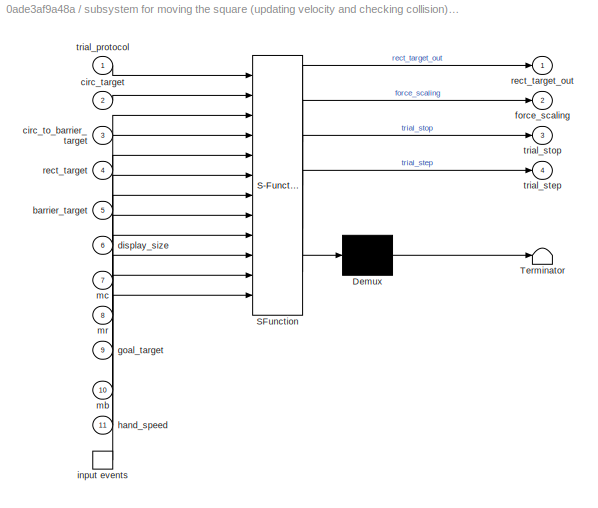
BLOCK [SubSystem] subsystem for moving the square (updating velocity and checking collision)/Collision Resolution
  ErrorFcn = Stateflow.Translate.translate
  PermitHierarchicalResolution = ParametersOnly
  Ports = [11, 4, 0, 1]
  RequestExecContextInheritance = off
  SFBlockType = Chart
  TreatAsAtomicUnit = on
BLOCK [Demux] subsystem for moving the square (updating velocity and checking collision)/Collision Resolution/ Demux 
  Outputs = 1
  Ports = [1, 1]
BLOCK [S-Function] subsystem for moving the square (updating velocity and checking collision)/Collision Resolution/ SFunction 
  EnableBusSupport = on
  FunctionName = sf_sfun
  PortCounts = [12 5]
  Ports = [12, 5]
  SFunctionDeploymentMode = off
  Tag = Stateflow S-Function may9js 1
BLOCK [Terminator] subsystem for moving the square (updating velocity and checking collision)/Collision Resolution/ Terminator 
BLOCK [Inport] subsystem for moving the square (updating velocity and checking collision)/Collision Resolution/barrier_target
  IconDisplay = Port number
  Port = 5
BLOCK [Inport] subsystem for moving the square (updating velocity and checking collision)/Collision Resolution/circ_target
  IconDisplay = Port number
  Port = 2
BLOCK [Inport] subsystem for moving the square (updating velocity and checking collision)/Collision Resolution/circ_to_barrier_target
  IconDisplay = Port number
  Port = 3
BLOCK [Inport] subsystem for moving the square (updating velocity and checking collision)/Collision Resolution/display_size
  IconDisplay = Port number
  Port = 6
BLOCK [Outport] subsystem for moving the square (updating velocity and checking collision)/Collision Resolution/force_scaling
  IconDisplay = Port number
  Port = 2
BLOCK [Inport] subsystem for moving the square (updating velocity and checking collision)/Collision Resolution/goal_target
  IconDisplay = Port number
  Port = 9
BLOCK [Inport] subsystem for moving the square (updating velocity and checking collision)/Collision Resolution/hand_speed
  IconDisplay = Port number
  Port = 11
BLOCK [TriggerPort] subsystem for moving the square (updating velocity and checking collision)/Collision Resolution/input events
  Ports = [0, 1]
  ShowOutputPort = on
  TriggerType = either
BLOCK [Inport] subsystem for moving the square (updating velocity and checking collision)/Collision Resolution/mb
  IconDisplay = Port number
  Port = 10
BLOCK [Inport] subsystem for moving the square (updating velocity and checking collision)/Collision Resolution/mc
  IconDisplay = Port number
  Port = 7
BLOCK [Inport] subsystem for moving the square (updating velocity and checking collision)/Collision Resolution/mr
  IconDisplay = Port number
  Port = 8
BLOCK [Inport] subsystem for moving the square (updating velocity and checking collision)/Collision Resolution/rect_target
  IconDisplay = Port number
  Port = 4
BLOCK [Outport] subsystem for moving the square (updating velocity and checking collision)/Collision Resolution/rect_target_out
  IconDisplay = Port number
BLOCK [Inport] subsystem for moving the square (updating velocity and checking collision)/Collision Resolution/trial_protocol
  IconDisplay = Port number
BLOCK [Outport] subsystem for moving the square (updating velocity and checking collision)/Collision Resolution/trial_step
  IconDisplay = Port number
  Port = 4
BLOCK [Outport] subsystem for moving the square (updating velocity and checking collision)/Collision Resolution/trial_stop
  IconDisplay = Port number
  Port = 3
BLOCK [Constant] subsystem for moving the square (updating velocity and checking collision)/Constant2
BLOCK [From] subsystem for moving the square (updating velocity and checking collision)/From1
  GotoTag = e_Trial_Start
BLOCK [From] subsystem for moving the square (updating velocity and checking collision)/From5
  GotoTag = Load_Table
  TagVisibility = global
BLOCK [SubSystem] subsystem for moving the square (updating velocity and checking collision)/Get Hand Speed
  Ports = [0, 1]
  RequestExecContextInheritance = off
BLOCK [BusSelector] subsystem for moving the square (updating velocity and checking collision)/Get Hand Speed/Bus Selector1
  OutputSignals = Robot1.a1_hand_velocities,Robot2.a2_hand_velocities,KINDataGeneral.active_arm
  Ports = [1, 3]
BLOCK [From] subsystem for moving the square (updating velocity and checking collision)/Get Hand Speed/From4
  GotoTag = KINdata_bus
  TagVisibility = global
BLOCK [Goto] subsystem for moving the square (updating velocity and checking collision)/Get Hand Speed/Goto2
  GotoTag = arm
BLOCK [Outport] subsystem for moving the square (updating velocity and checking collision)/Get Hand Speed/Hand Speeds for Both Arms
  IconDisplay = Port number
BLOCK [Concatenate] subsystem for moving the square (updating velocity and checking collision)/Get Hand Speed/Matrix Concatenate1
  Mode = Multidimensional array
  Ports = [2, 1]
BLOCK [SubSystem] subsystem for moving the square (updating velocity and checking collision)/Hand Feedback
  Ports = [2, 1]
  RequestExecContextInheritance = off
BLOCK [SubSystem] subsystem for moving the square (updating velocity and checking collision)/Hand Feedback/Hand_Feedback
  AncestorBlock = KINARM_general/Hand_Feedback
  Ports = [2, 1]
  RequestExecContextInheritance = off
BLOCK [Inport] subsystem for moving the square (updating velocity and checking collision)/Hand Feedback/Hand_Feedback/Assess_arm_VCODE
  IconDisplay = Port number
BLOCK [Inport] subsystem for moving the square (updating velocity and checking collision)/Hand Feedback/Hand_Feedback/Contralateral_arm_VCODE
  IconDisplay = Port number
  Port = 2
BLOCK [SubSystem] subsystem for moving the square (updating velocity and checking collision)/Hand Feedback/Hand_Feedback/FeedFwdArm
  ErrorFcn = Stateflow.Translate.translate
  PermitHierarchicalResolution = ParametersOnly
  Ports = [4, 1]
  RTWFileNameOpts = Use function name
  RTWSystemCode = Nonreusable function
  RequestExecContextInheritance = off
  SFBlockType = MATLAB Function
  TreatAsAtomicUnit = on
BLOCK [Demux] subsystem for moving the square (updating velocity and checking collision)/Hand Feedback/Hand_Feedback/FeedFwdArm/ Demux 
  Outputs = 1
  Ports = [1, 1]
BLOCK [S-Function] subsystem for moving the square (updating velocity and checking collision)/Hand Feedback/Hand_Feedback/FeedFwdArm/ SFunction 
  EnableBusSupport = on
  FunctionName = sf_sfun
  PortCounts = [4 2]
  Ports = [4, 2]
  SFunctionDeploymentMode = off
  Tag = Stateflow S-Function may9js 4
BLOCK [Terminator] subsystem for moving the square (updating velocity and checking collision)/Hand Feedback/Hand_Feedback/FeedFwdArm/ Terminator 
BLOCK [Inport] subsystem for moving the square (updating velocity and checking collision)/Hand Feedback/Hand_Feedback/FeedFwdArm/KINARMdata
  IconDisplay = Port number
BLOCK [Inport] subsystem for moving the square (updating velocity and checking collision)/Hand Feedback/Hand_Feedback/FeedFwdArm/VCODES_in
  IconDisplay = Port number
  Port = 2
BLOCK [Outport] subsystem for moving the square (updating velocity and checking collision)/Hand Feedback/Hand_Feedback/FeedFwdArm/VCODES_out
  IconDisplay = Port number
BLOCK [Inport] subsystem for moving the square (updating velocity and checking collision)/Hand Feedback/Hand_Feedback/FeedFwdArm/block_settings
  IconDisplay = Port number
  Port = 4
BLOCK [Inport] subsystem for moving the square (updating velocity and checking collision)/Hand Feedback/Hand_Feedback/FeedFwdArm/fdbk_stts_mdl
  IconDisplay = Port number
  Port = 3
BLOCK [From] subsystem for moving the square (updating velocity and checking collision)/Hand Feedback/Hand_Feedback/From1
  CloseFcn = tagdialog Close
  GotoTag = KINdata
  TagVisibility = global
BLOCK [Concatenate] subsystem for moving the square (updating velocity and checking collision)/Hand Feedback/Hand_Feedback/Matrix Concatenation
  Mode = Multidimensional array
  Ports = [2, 1]
BLOCK [Reshape] subsystem for moving the square (updating velocity and checking collision)/Hand Feedback/Hand_Feedback/Reshape
  OutputDimensionality = Row vector (2-D)
  Ports = [1, 1]
BLOCK [Reshape] subsystem for moving the square (updating velocity and checking collision)/Hand Feedback/Hand_Feedback/Reshape1
  OutputDimensionality = Row vector (2-D)
  Ports = [1, 1]
BLOCK [Outport] subsystem for moving the square (updating velocity and checking collision)/Hand Feedback/Hand_Feedback/VCODE
  IconDisplay = Port number
BLOCK [Constant] subsystem for moving the square (updating velocity and checking collision)/Hand Feedback/Hand_Feedback/block_settings
  Value = feedback_cntl_src
BLOCK [Constant] subsystem for moving the square (updating velocity and checking collision)/Hand Feedback/Hand_Feedback/feedback_status
BLOCK [SubSystem] subsystem for moving the square (updating velocity and checking collision)/Hand Feedback/MATLAB Function
  ErrorFcn = Stateflow.Translate.translate
  PermitHierarchicalResolution = ParametersOnly
  Ports = [2, 1]
  RequestExecContextInheritance = off
  SFBlockType = MATLAB Function
  TreatAsAtomicUnit = on
BLOCK [Demux] subsystem for moving the square (updating velocity and checking collision)/Hand Feedback/MATLAB Function/ Demux 
  Outputs = 1
  Ports = [1, 1]
BLOCK [S-Function] subsystem for moving the square (updating velocity and checking collision)/Hand Feedback/MATLAB Function/ SFunction 
  EnableBusSupport = on
  FunctionName = sf_sfun
  PortCounts = [2 2]
  Ports = [2, 2]
  SFunctionDeploymentMode = off
  Tag = Stateflow S-Function may9js 2
BLOCK [Terminator] subsystem for moving the square (updating velocity and checking collision)/Hand Feedback/MATLAB Function/ Terminator 
BLOCK [Inport] subsystem for moving the square (updating velocity and checking collision)/Hand Feedback/MATLAB Function/arm_to_be_assessed
  IconDisplay = Port number
  Port = 2
BLOCK [Inport] subsystem for moving the square (updating velocity and checking collision)/Hand Feedback/MATLAB Function/feedback_vcodes
  IconDisplay = Port number
BLOCK [Outport] subsystem for moving the square (updating velocity and checking collision)/Hand Feedback/MATLAB Function/hand_vcodes
  IconDisplay = Port number
BLOCK [Inport] subsystem for moving the square (updating velocity and checking collision)/Hand Feedback/arm
  IconDisplay = Port number
  Port = 2
BLOCK [Outport] subsystem for moving the square (updating velocity and checking collision)/Hand Feedback/hand feedback
  IconDisplay = Port number
BLOCK [Inport] subsystem for moving the square (updating velocity and checking collision)/Hand Feedback/template vcodes
  IconDisplay = Port number
BLOCK [Mux] subsystem for moving the square (updating velocity and checking collision)/Mux
  DisplayOption = bar
  Inputs = 2
  Ports = [2, 1]
BLOCK [DiscretePulseGenerator] subsystem for moving the square (updating velocity and checking collision)/Pulse Generator
  Period = 1/1000
  Ports = [0, 1]
  PulseType = Time based
  PulseWidth = 50
BLOCK [Outport] subsystem for moving the square (updating velocity and checking collision)/forces
  IconDisplay = Port number
  Port = 3
BLOCK [Selector] subsystem for moving the square (updating velocity and checking collision)/get barrier mass
  IndexOptions = Index vector (port),Index vector (dialog)
  Indices = MASS_RECT,MASS_RECT
  NumberOfDimensions = 2
  OutputSizes = 1,1
  Ports = [2, 1]
BLOCK [Selector] subsystem for moving the square (updating velocity and checking collision)/get hand mass
  IndexOptions = Index vector (port),Index vector (dialog)
  Indices = MASS_CIRCLE,MASS_CIRCLE
  NumberOfDimensions = 2
  OutputSizes = 1,1
  Ports = [2, 1]
BLOCK [Selector] subsystem for moving the square (updating velocity and checking collision)/get rectangle mass
  IndexOptions = Index vector (port),Index vector (dialog)
  Indices = MASS_RECT,MASS_RECT
  NumberOfDimensions = 2
  OutputSizes = 1,1
  Ports = [2, 1]
BLOCK [Outport] subsystem for moving the square (updating velocity and checking collision)/hand feedback vcode
  IconDisplay = Port number
  Port = 2
BLOCK [Inport] subsystem for moving the square (updating velocity and checking collision)/load row
  IconDisplay = Port number
  Port = 3
BLOCK [From] subsystem for moving the square (updating velocity and checking collision)/physical size of the subject display
  GotoTag = display_size_m
  TagVisibility = global
BLOCK [Outport] subsystem for moving the square (updating velocity and checking collision)/trial ended 0 or 1
  IconDisplay = Port number
  OutDataTypeStr = double
  Port = 4
  PortDimensions = [1]
BLOCK [Outport] subsystem for moving the square (updating velocity and checking collision)/trial_step_variable
  IconDisplay = Port number
  OutDataTypeStr = double
  Port = 5
  PortDimensions = [1]
BLOCK [Inport] subsystem for moving the square (updating velocity and checking collision)/vcode for barrier
  IconDisplay = Port number
  Port = 5
  PortDimensions = [1 70]
BLOCK [Inport] subsystem for moving the square (updating velocity and checking collision)/vcode for goal
  IconDisplay = Port number
  Port = 4
  PortDimensions = [1 70]
BLOCK [Inport] subsystem for moving the square (updating velocity and checking collision)/vcode for puck
  IconDisplay = Port number
  LockScale = on
  Port = 2
  PortDimensions = [1 70]
BLOCK [Inport] subsystem for moving the square (updating velocity and checking collision)/vcode for what the hands should look like
  IconDisplay = Port number
  PortDimensions = [1 70]
BLOCK [Outport] subsystem for moving the square (updating velocity and checking collision)/vcode puck after moving
  IconDisplay = Port number
BLOCK [Inport] vcode for barrier
  IconDisplay = Port number
  Port = 3
  PortDimensions = [1 70]
BLOCK [Inport] vcode for goal
  IconDisplay = Port number
  Port = 2
  PortDimensions = [1 70]
BLOCK [Inport] vcode for what the hands should look like
  IconDisplay = Port number
  PortDimensions = [1 70]
ANNOTATION (root): These are the things that will be drawn
ANNOTATION Hand Feedback/Hand_Feedback: KV - disabling feed forward
ANNOTATION Hand Feedback/Hand_Feedback: This Sub-Block creates the Hand Feedback VCODEs for drawing hand feedback
ANNOTATION Hand Feedback/Hand_Feedback: <copyright redacted>
ANNOTATION KINARM_HandInBarrier: <copyright redacted>
ANNOTATION Subsystem: Creates the hand bump based on force scaling that comes from Collion Resolution The basics here are: -when force scaling changes from 0, a perturbation begins. -the memory3 function holds the value of force_scaling at that moment until the perturbation is done -the hand bump has a force value of: FORCE_MULTIPLIER * (force_scaling .* perturbation) N -FORCE_MULTIPLIER is a fudge factor coming from T...<+71ch>
ANNOTATION Subsystem/Perturbation: <copyright redacted>
ANNOTATION subsystem for moving the square (updating velocity and checking collision): 1000 Hz clock to activate the Stateflow diagram every 1 ms
ANNOTATION subsystem for moving the square (updating velocity and checking collision)/Hand Feedback/Hand_Feedback: KV - disabling feed forward
ANNOTATION subsystem for moving the square (updating velocity and checking collision)/Hand Feedback/Hand_Feedback: This Sub-Block creates the Hand Feedback VCODEs for drawing hand feedback
ANNOTATION subsystem for moving the square (updating velocity and checking collision)/Hand Feedback/Hand_Feedback: <copyright redacted>
LINE Constant2:1 -> Hand Feedback:2
LINE Forces_to_Torques:1 -> KINARM_Exo_Apply_Loads:1
NET From10:1 -> get barrier mass:1, get hand mass:1, get rectangle mass:1
LINE From11:1 -> Memory3:1
LINE From14:1 -> Subsystem:1
LINE From2:1 -> Subsystem:2
LINE From3:1 -> Matrix Concatenate:6
LINE From4:1 -> Matrix Concatenate:5
LINE From5:1 -> Matrix Concatenate:1
LINE From6:1 -> Matrix Concatenate:3
LINE From7:1 -> Matrix Concatenate:4
LINE From8:1 -> Matrix Concatenate:2
NET From9:1 -> Memory2:1, Memory5:1
LINE From:1 -> Subsystem:3
LINE GUI Control:1 -> Trial_Control:trigger
LINE GUI Control:2 -> Trial_Control:1
LINE Get Hand Speed/Bus Selector1:1 -> Get Hand Speed/Matrix Concatenate1:1
LINE Get Hand Speed/Bus Selector1:2 -> Get Hand Speed/Matrix Concatenate1:2
LINE Get Hand Speed/Bus Selector1:3 -> Get Hand Speed/Goto2:1
LINE Get Hand Speed/From4:1 -> Get Hand Speed/Bus Selector1:1
LINE Get Hand Speed/Matrix Concatenate1:1 -> Get Hand Speed/Hand Speeds for Both Arms:1
LINE Get Hand Speed:1 -> Trial_Control:13
LINE Hand Feedback/Hand_Feedback:1 -> Hand Feedback/MATLAB Function:1
LINE Hand Feedback/MATLAB Function:1 -> Hand Feedback/hand feedback:1
LINE Hand Feedback/arm:1 -> Hand Feedback/MATLAB Function:2
NET Hand Feedback/template vcodes:1 -> Hand Feedback/Hand_Feedback:1, Hand Feedback/Hand_Feedback:2
NET Hand Feedback:1 -> Memory6:1, hand feedback vcode:1
LINE KINARM_HandInBarrier:1 -> Trial_Control:5
LINE KINARM_HandInTarget:1 -> Trial_Control:2
LINE Matrix Concatenate:1 -> Process_Video_CMD:1
LINE Memory2:1 -> PuckInTarget:1
LINE Memory3:1 -> Trial_Control:10
LINE Memory4:1 -> Trial_Control:7
LINE Memory5:1 -> Trial_Control:8
LINE Memory6:1 -> Trial_Control:11
LINE Memory:1 -> Trial_Control:3
LINE PuckInTarget:1 -> Trial_Control:6
LINE Show_Barrier_Rectanle:1 -> Goto6:1
LINE Show_Goal_Rectangle:1 -> Goto8:1
LINE Show_Preshot_Area_Circle:1 -> Goto9:1
LINE Show_Start_Circle:1 -> Goto7:1
LINE Subsystem/Abs:1 -> Subsystem/Sum of Elements:1
LINE Subsystem/Compare To Zero1:1 -> Subsystem/Perturbation:2
LINE Subsystem/Load Row:1 -> Subsystem/Perturbation:1
LINE Subsystem/Memory3:1 -> Subsystem/Switch:1
NET Subsystem/Perturbation:1 -> Subsystem/Product:3, Subsystem/Switch:2
LINE Subsystem/Product:1 -> Subsystem/forces (N):1
LINE Subsystem/Sum of Elements:1 -> Subsystem/Compare To Zero1:1
NET Subsystem/Switch:1 -> Subsystem/Memory3:1, Subsystem/Product:2, Subsystem/Scope 1:1
LINE Subsystem/Task Wide Parameters:1 -> Subsystem/get fudge factor:1
NET Subsystem/forces scaling:1 -> Subsystem/Abs:1, Subsystem/Switch:3
LINE Subsystem/get fudge factor:1 -> Subsystem/Product:1
NET Subsystem:1 -> Forces_to_Torques:1, KINARM_EP_Apply_Loads:1
LINE Trial_Control:1 -> DataLogging:1
LINE Trial_Control:10 -> Show_Start_Circle:1
LINE Trial_Control:11 -> Show_Start_Circle:2
LINE Trial_Control:12 -> Show_Goal_Rectangle:1
LINE Trial_Control:13 -> Show_Goal_Rectangle:2
LINE Trial_Control:14 -> Show_Preshot_Area_Circle:2
LINE Trial_Control:15 -> Show_Preshot_Area_Circle:1
LINE Trial_Control:17 -> GUI Control:1
LINE Trial_Control:18 -> Goto4:1
LINE Trial_Control:2 -> DataLogging:2
LINE Trial_Control:3 -> Show_Hands:1
LINE Trial_Control:4 -> Show_Hands:2
LINE Trial_Control:5 -> Show_Puck_Rectangle:1
LINE Trial_Control:6 -> Show_Puck_Rectangle:2
LINE Trial_Control:7 -> Goto:1
LINE Trial_Control:8 -> Show_Barrier_Rectanle:1
LINE Trial_Control:9 -> Show_Barrier_Rectanle:2
LINE get barrier mass:1 -> Trial_Control:16
LINE get hand mass:1 -> Trial_Control:14
LINE get rectangle mass:1 -> Trial_Control:15
NET load row:1 -> get barrier mass:2, get hand mass:2, get rectangle mass:2
LINE physical size of the subject display:1 -> Trial_Control:12
LINE subsystem for moving the square (updating velocity and checking collision)/Collision Resolution:1 -> subsystem for moving the square (updating velocity and checking collision)/vcode puck after moving:1
LINE subsystem for moving the square (updating velocity and checking collision)/Collision Resolution:2 -> subsystem for moving the square (updating velocity and checking collision)/forces:1
LINE subsystem for moving the square (updating velocity and checking collision)/Collision Resolution:3 -> subsystem for moving the square (updating velocity and checking collision)/trial ended 0 or 1:1
LINE subsystem for moving the square (updating velocity and checking collision)/Collision Resolution:4 -> subsystem for moving the square (updating velocity and checking collision)/trial_step_variable:1
LINE subsystem for moving the square (updating velocity and checking collision)/Constant2:1 -> subsystem for moving the square (updating velocity and checking collision)/Hand Feedback:2
LINE subsystem for moving the square (updating velocity and checking collision)/From1:1 -> subsystem for moving the square (updating velocity and checking collision)/Mux:2
NET subsystem for moving the square (updating velocity and checking collision)/From5:1 -> subsystem for moving the square (updating velocity and checking collision)/get barrier mass:1, subsystem for moving the square (updating velocity and checking collision)/get hand mass:1, subsystem for moving the square (updating velocity and checking collision)/get rectangle mass:1
LINE subsystem for moving the square (updating velocity and checking collision)/Get Hand Speed/Bus Selector1:1 -> subsystem for moving the square (updating velocity and checking collision)/Get Hand Speed/Matrix Concatenate1:1
LINE subsystem for moving the square (updating velocity and checking collision)/Get Hand Speed/Bus Selector1:2 -> subsystem for moving the square (updating velocity and checking collision)/Get Hand Speed/Matrix Concatenate1:2
LINE subsystem for moving the square (updating velocity and checking collision)/Get Hand Speed/Bus Selector1:3 -> subsystem for moving the square (updating velocity and checking collision)/Get Hand Speed/Goto2:1
LINE subsystem for moving the square (updating velocity and checking collision)/Get Hand Speed/From4:1 -> subsystem for moving the square (updating velocity and checking collision)/Get Hand Speed/Bus Selector1:1
LINE subsystem for moving the square (updating velocity and checking collision)/Get Hand Speed/Matrix Concatenate1:1 -> subsystem for moving the square (updating velocity and checking collision)/Get Hand Speed/Hand Speeds for Both Arms:1
LINE subsystem for moving the square (updating velocity and checking collision)/Get Hand Speed:1 -> subsystem for moving the square (updating velocity and checking collision)/Collision Resolution:11
LINE subsystem for moving the square (updating velocity and checking collision)/Hand Feedback/Hand_Feedback:1 -> subsystem for moving the square (updating velocity and checking collision)/Hand Feedback/MATLAB Function:1
LINE subsystem for moving the square (updating velocity and checking collision)/Hand Feedback/MATLAB Function:1 -> subsystem for moving the square (updating velocity and checking collision)/Hand Feedback/hand feedback:1
LINE subsystem for moving the square (updating velocity and checking collision)/Hand Feedback/arm:1 -> subsystem for moving the square (updating velocity and checking collision)/Hand Feedback/MATLAB Function:2
NET subsystem for moving the square (updating velocity and checking collision)/Hand Feedback/template vcodes:1 -> subsystem for moving the square (updating velocity and checking collision)/Hand Feedback/Hand_Feedback:1, subsystem for moving the square (updating velocity and checking collision)/Hand Feedback/Hand_Feedback:2
NET subsystem for moving the square (updating velocity and checking collision)/Hand Feedback:1 -> subsystem for moving the square (updating velocity and checking collision)/Collision Resolution:2, subsystem for moving the square (updating velocity and checking collision)/Collision Resolution:3, subsystem for moving the square (updating velocity and checking collision)/hand feedback vcode:1
LINE subsystem for moving the square (updating velocity and checking collision)/Mux:1 -> subsystem for moving the square (updating velocity and checking collision)/Collision Resolution:trigger
LINE subsystem for moving the square (updating velocity and checking collision)/Pulse Generator:1 -> subsystem for moving the square (updating velocity and checking collision)/Mux:1
LINE subsystem for moving the square (updating velocity and checking collision)/get barrier mass:1 -> subsystem for moving the square (updating velocity and checking collision)/Collision Resolution:10
LINE subsystem for moving the square (updating velocity and checking collision)/get hand mass:1 -> subsystem for moving the square (updating velocity and checking collision)/Collision Resolution:7
LINE subsystem for moving the square (updating velocity and checking collision)/get rectangle mass:1 -> subsystem for moving the square (updating velocity and checking collision)/Collision Resolution:8
NET subsystem for moving the square (updating velocity and checking collision)/load row:1 -> subsystem for moving the square (updating velocity and checking collision)/get barrier mass:2, subsystem for moving the square (updating velocity and checking collision)/get hand mass:2, subsystem for moving the square (updating velocity and checking collision)/get rectangle mass:2
LINE subsystem for moving the square (updating velocity and checking collision)/physical size of the subject display:1 -> subsystem for moving the square (updating velocity and checking collision)/Collision Resolution:6
LINE subsystem for moving the square (updating velocity and checking collision)/vcode for barrier:1 -> subsystem for moving the square (updating velocity and checking collision)/Collision Resolution:5
LINE subsystem for moving the square (updating velocity and checking collision)/vcode for goal:1 -> subsystem for moving the square (updating velocity and checking collision)/Collision Resolution:9
LINE subsystem for moving the square (updating velocity and checking collision)/vcode for puck:1 -> subsystem for moving the square (updating velocity and checking collision)/Collision Resolution:4
LINE subsystem for moving the square (updating velocity and checking collision)/vcode for what the hands should look like:1 -> subsystem for moving the square (updating velocity and checking collision)/Hand Feedback:1
LINE subsystem for moving the square (updating velocity and checking collision):1 -> Goto2:1
LINE subsystem for moving the square (updating velocity and checking collision):2 -> Goto1:1
LINE subsystem for moving the square (updating velocity and checking collision):3 -> Goto3:1
LINE subsystem for moving the square (updating velocity and checking collision):4 -> Memory:1
LINE vcode for barrier:1 -> Memory4:1
LINE vcode for goal:1 -> Trial_Control:9
LINE vcode for what the hands should look like:1 -> Hand Feedback:1
note: NET lines group one-source signal fan-out (src -> all destinations, sorted); 1:1 wires keep LINE
CHART subsystem for moving the square (updating velocity and checking collision)/Collision Resolution states=24 transitions=10
  STATE_LABEL 'Initialize/\n% Stateflow starts here when task is loaded\nentry: force_scaling = [0 0 0 0];\n rect_target_out = zeros(1,70);\n rect_vel = [0 0];\n rect_offset_position = [0 0];\n trial_step = 0;\n trial_stop = 0;\n'
  STATE_LABEL 'Initialize1/\n% Stateflow starts here when task is loaded\nentry: force_scaling = [0 0 0 0];\n rect_target_out = zeros(1,70);\n rect_vel = [0 0];\n rect_offset_position = [0 0];\n trial_step = 0;\n trial_stop = 0;\n'
  STATE_LABEL 'Moving_Targets_and_Colliding_Them\n%there are 4 parallel states here. They each execute in the same cycle but in a specific order (see top right of the state)\n% state 3 is the important one - it simply says "move the square according to its velocity"\n% states 1 and 2 check collisions to update that velocity before we get to state 3\n% state 4 then checks to see if we ended up outside the screen and ...<+45ch>'
  STATE_LABEL 'CollisionWithWall/\n% this substate will handle collision between square and screen edges.\n% is the rectangle at the left edge of the screen\nen, du: if((rect_target_out(3)-rect_target_out(10)/2) < -display_size(1)/2)\n     %rect_vel(1) = -rect_vel(1);\n     trial_step = 2\n     rect_vel(1) = 0;\n end\n % is the rectangle at the right edge of the screen\n if((rect_target_out(3)+rect_target_out(10)/2) > di...<+461ch>'  <repeated x3 — deduplicated; at blocks: Collision Resolution>
  STATE_LABEL "CheckToSeeIfWeAreOutofBounds1/\n% once everything is done moving and colliding, we check to see if we're off the screen still. If we are, put the square in the start position with 0 velocity\n% once collision is handled, move the square by its velocity\n% Reset everything as soon as the rectangle touches the side of the screen\nduring:\n    if (rect_target_out(3) - rect_target_out(10)/2 <= -display_siz...<+476ch>"  <repeated x3 — deduplicated; at blocks: Collision Resolution>
  STATE_LABEL 'CheckToSeeIfGoalReached1/\n% once the participant hits the square (denoted by the puck), then we want to calculate if it is inside of the goal or not. this is done using the input form prior matrix.\n% since the input ot this block is the vcode, we access the dimesnion of the vector that contains length., width, height. in the start position with 0 velocity\n% Get rectangle (puck) info\nrect_x = rect_...<+861ch>'  <repeated x3 — deduplicated; at blocks: Collision Resolution>
  STATE_LABEL 'CollisionWithHand/\n% this substate will handle collision checks between hands and the square'
  STATE_LABEL "ResolveTargetCollision\nduring: % if something collided, we're going to separate the two objects and then use elastic collision to update velocities\n % eject the rectangle\n rect_offset_position = eject( circ_target( target_colliding,:), rect_target, rect_offset_position);\n prev_vel = rect_vel;\n hand_vel = hand_speed( target_colliding,:)/1e3;\n % elastic collision equations - here m = 1 and is the sa...<+515ch>"  <repeated x5 — deduplicated; at blocks: Collision Resolution, Trial_Control>
  STATE_LABEL 'WaitForCollision/\nentry: % state where we wait for collisions to happen\n force_scaling = [0 0 0 0];\nduring:\nrect_target_out = rect_target;\nrect_offset_position = rect_offset_position + rect_vel;\nrect_target_out(3:4) = rect_target_out(3:4)+rect_offset_position\ntarget_colliding = check_collision(circ_target, rect_target, rect_offset_position)\n'  <repeated x5 — deduplicated; at blocks: Collision Resolution, Trial_Control>
  STATE_LABEL 'StartWithSpeed0/\n%\nentry:  rect_vel = [0 0];\n  rect_offset_position = [0 0];'
  STATE_LABEL 'e_Trial_Start'
  STATE_LABEL '[ target_colliding]'
  STATE_LABEL '[~check_collision(circ_target( target_colliding,:), rect_target, rect_offset_position)]\n/{target_colliding=0}'
  STATE_LABEL 'PositionUpdated/\n% once collision is handled, move the square by its velocity\nduring: rect_target_out = rect_target;\n rect_offset_position = rect_offset_position + rect_vel;\n rect_target_out(3:4) = rect_target_out(3:4)+rect_offset_position;\n'  <repeated x4 — deduplicated; at blocks: Collision Resolution, Trial_Control>
  STATE_LABEL 'CollisionWithHand/\n% this substate will handle collision checks between hands and the square'
  STATE_LABEL 'StartWithSpeed0/\n%\nentry:  rect_vel = [0 0];\n  rect_offset_position = [0 0];'
  STATE_LABEL 'e_Trial_Start'
  STATE_LABEL '[ target_colliding]'
  STATE_LABEL '[~check_collision(circ_target( target_colliding,:), rect_target, rect_offset_position)]\n/{target_colliding=0}'
  STATE_LABEL 'StartWithSpeed0/\n%\nentry:  rect_vel = [0 0];\n  rect_offset_position = [0 0];'
  STATE_LABEL 'Moving_Targets_and_Colliding_Them1\n%there are 4 parallel states here. They each execute in the same cycle but in a specific order (see top right of the state)\n% state 3 is the important one - it simply says "move the square according to its velocity"\n% states 1 and 2 check collisions to update that velocity before we get to state 3\n% state 4 then checks to see if we ended up outside the screen and...<+46ch>'
  STATE_LABEL 'CollisionWithHand/\n% this substate will handle collision checks between hands and the square'
  STATE_LABEL 'StartWithSpeed0/\n%\nentry:  rect_vel = [0 0];\n  rect_offset_position = [0 0];'
  STATE_LABEL 'e_Trial_Start'
  STATE_LABEL '[ target_colliding]'
  STATE_LABEL '[~check_collision(circ_target( target_colliding,:), rect_target, rect_offset_position)]\n/{target_colliding=0}'
CHART subsystem for moving the square (updating velocity and checking collision)/Hand Feedback/MATLAB Function states=1 transitions=1
  STATE_LABEL 'eML_blk_kernel()'
  STATE_LABEL 'SCRIPT:\nfunction hand_vcodes = fcn(feedback_vcodes, arm_to_be_assessed)\n% the hand feedback vcodes are sorted like this:\n%    <arm to be assessed vcode>\n%    <contralateral arm> \n% but using this function I am going to sort the vcodes like this:\n%    <right arm>\n%    <left arm>\n% because that will make it easier to track velocities and forces\n\nif arm_to_be_assessed == 1\n\thand_vcodes = feedback_vco...<+90ch>'
CHART Trial_Control states=22 transitions=28
  STATE_LABEL 'Initialize/\n% Set variables\nentry:\nlogging_enable = true;\nstart_target_row = Trial_Protocol(START_ROW);\npreshot_area_row = Trial_Protocol(PRESHOT_ROW);\ncursor_row = Trial_Protocol(CIRCLE_ROW);\npuck_row = Trial_Protocol(RECT_ROW);\nbarrier_target_row = Trial_Protocol(BARRIER_ROW);\ngoal_target_row = Trial_Protocol(GOAL_ROW);\nload_row = Trial_Protocol(LOAD_ROW);\ntrial_duration = Trial_Protocol(SECONDS...<+190ch>'
  STATE_LABEL 'Main_Trial/\n% Each trial task only initializes variables and then runs for Trial_Protocol(SECONDS) seconds before stopping\n'
  STATE_LABEL 'StartOn/\nentry:\nstart_target_state = 2;\npreshot_area_state = 0;\ncursor_state = 2;\npuck_state = 0;\nbarrier_target_state = 0;\ngoal_target_state = 0;\ne_Trial_Start;\nevent_code = E_TRIAL_BEGIN;'
  STATE_LABEL 'StartHold/\nentry:\nstart_target_state = 3;\npreshot_area_state=0;\npuck_state=0;\ngoal_target_state=0;\nbarrier_target_state=0;\nevent_code = E_ENTER_START_AREA;\n'
  STATE_LABEL 'PreshotStart/\n% send e_Trial_End event\nentry:\n    preshot_area_state=3;\n    puck_state=2;\n    goal_target_state=2;\n    barrier_target_state=2;\n    event_code = E_ENTER_PRESHOT_AREA;\n'
  STATE_LABEL 'PreshotMove/\n% send e_Trial_End event\nentry:\n'
  STATE_LABEL 'CollisionWithHand/\n% this substate will handle collision checks between hands and the square'
  STATE_LABEL 'StartWithSpeed0/\n%\nentry:  rect_vel = [0 0];\n  rect_offset_position = [0 0];'
  STATE_LABEL 'e_Trial_Start'
  STATE_LABEL '[ target_colliding]'
  STATE_LABEL '[~check_collision(circ_target( target_colliding,:), rect_target, rect_offset_position)]\n/{target_colliding=0}'
  STATE_LABEL 'ShotReady/\n% send e_Trial_End event\nentry:\nevent_code = E_EXIT;\n'
  STATE_LABEL 'ShotSet/\n% send e_Trial_End event\nentry:\n    preshot_area_state=0;'
  STATE_LABEL 'Success/\n% send e_Trial_End event\nentry:\n    puck_state=0;\n    goal_target_state=3'
  STATE_LABEL 'PuckInGoal/\n% send e_Trial_End event\nentry:'
  STATE_LABEL 'Shot/\n% send e_Trial_End event\nentry:\n    start_target_state=0;'
  STATE_LABEL 'Fail/\n% send e_Trial_End event\nentry:\nevent_code = E_TRIAL_FAILURE;\nstart_target_state=0;\npreshot_area_state = 0;\ncursor_state = 2;\npuck_state = 0;\nbarrier_target_state = 0;\ngoal_target_state = 0;'
  STATE_LABEL 'Initialize1/\n% Stateflow starts here when task is loaded\nentry: force_scaling = [0 0 0 0];\n rect_target_out = zeros(1,70);\n rect_vel = [0 0];\n rect_offset_position = [0 0];\n trial_step = 0;\n trial_stop = 0;\n'
  STATE_LABEL 'colliding_target = check_collision1(circ_matrix_in, rect_vector_in, rect_offset_in)'
  STATE_LABEL 'SCRIPT:\nfunction colliding_target = check_collision1(circ_matrix_in, rect_vector_in, rect_offset_in)\n\n% calculates collision between 2 circles (ie. either hand feedback) and rectangle\n% inputs:\n%        circ_matrix_in - 2x70 matrix that is 2 circle vcodes\n%        rect_vector_in - 1x70 vector that is a rectangle vcode\n%        rect_offset_in - position offset for rect_vector_ in to calculate\n%    ...<+1369ch>'
  STATE_LABEL 'eject_rect_offset = eject1(circ_vcode_in, rect_vcode_in, rect_offset)'
  STATE_LABEL 'SCRIPT:\nfunction eject_rect_offset = eject1(circ_vcode_in, rect_vcode_in, rect_offset)\n\n% moves the rectangle_vcode out of a circle_vcode if the two are\n% overlapping\n\nx = 3;\ny = 4;\n\nradius = circ_vcode_in(10);\nw = rect_vcode_in(10);\nh = rect_vcode_in(10);\n\nx0 = circ_vcode_in(x);\ny0 = circ_vcode_in(y);\n\nX0 = rect_vcode_in(x)+rect_offset(1);\nY0 = rect_vcode_in(y)+rect_offset(2);\n\ndeltax = x0-X0;\nde...<+1527ch>'
  STATE_LABEL 'after(start_hold_time,sec)'
  STATE_LABEL '[HandInTarget(start_target_row,1)==1]'
  STATE_LABEL '[HandInTarget(start_target_row,1)==0]'
  STATE_LABEL '[HandInTarget(start_target_row,1)==0]'
  STATE_LABEL '[HandInTarget(preshot_area_row,1)==0]'
  STATE_LABEL '[HandInTarget(start_target_row,1)==0]'
  STATE_LABEL '[HandInTarget(preshot_area_row,1)==0]'
  STATE_LABEL '[HandInTarget(start_target_row,1)==0]'
  STATE_LABEL '[HandInTarget(start_target_row,1)==1]'
  STATE_LABEL 'after(shot_ready_time,sec)'
  STATE_LABEL 'after(shot_set_time,sec)'
  STATE_LABEL 'after(goal_time,sec)'
  STATE_LABEL '[PuckInTarget(goal_target_row,1)==1]'
  STATE_LABEL '[PuckInTarget(goal_target_row,1)==0]'
  STATE_LABEL '[HandInBarrier(barrier_target_row,1)==1]'
CHART subsystem for moving the square (updating velocity and checking collision)/Hand Feedback/Hand_Feedback/FeedFwdArm states=1 transitions=1
  STATE_LABEL 'eML_blk_kernel()'
  STATE_LABEL 'SCRIPT:\nfunction VCODES_out  = fcn(KINARMdata,VCODES_in,fdbk_stts_mdl, block_settings)\n%\n% This function creates the VCODEs for the hand position feedback for both\n% hands.  Various options in the Mask of the Simulink block in which this\n% embedded Matlab file sits, allow the user to specify how often\n% the hand feedback is updated as well as the source of the style and status\n% of the hand feedba...<+3608ch>'
CHART PuckInTarget/Embedded
MATLAB InsideTarget states=1 transitions=1
  STATE_LABEL 'eML_blk_kernel()'
  STATE_LABEL 'SCRIPT:\nfunction intarget = FIsInsideTarget(handpos, target_type, attribcol, num_targets, Target_Table)\n% all dimensions in m, rad\n% arguments:\n% handpos: x,y positions of center of target\n% attribcol: columns in target table specifying target attributes.  \n% Specific to Target_Type\n%\tcircle:\n%\t[X0,Y0,r...,rn] where:\n%\tX0,Y0 : centre of circle\n%\tr : logical radius of circle (i.e. radius used to de...<+3608ch>'
CHART Hand Feedback/Hand_Feedback/FeedFwdArm states=1 transitions=1
  STATE_LABEL 'eML_blk_kernel()'
  STATE_LABEL 'SCRIPT:\nfunction VCODES_out  = fcn(KINARMdata,VCODES_in,fdbk_stts_mdl, block_settings)\n%\n% This function creates the VCODEs for the hand position feedback for both\n% hands.  Various options in the Mask of the Simulink block in which this\n% embedded Matlab file sits, allow the user to specify how often\n% the hand feedback is updated as well as the source of the style and status\n% of the hand feedba...<+3608ch>'
CHART KINARM_HandInBarrier/Embedded
MATLAB InsideTarget states=1 transitions=1
  STATE_LABEL 'eML_blk_kernel()'
  STATE_LABEL 'SCRIPT:\nfunction intarget = FIsInsideTarget(handpos, target_type, attribcol, num_targets, Target_Table)\n% all dimensions in m, rad\n% arguments:\n% handpos: x,y positions of center of target\n% attribcol: columns in target table specifying target attributes.  \n% Specific to Target_Type\n%\tcircle:\n%\t[X0,Y0,r...,rn] where:\n%\tX0,Y0 : centre of circle\n%\tr : logical radius of circle (i.e. radius used to de...<+3608ch>'
CHART Subsystem/Perturbation/Ramp_up_down states=5 transitions=12
  STATE_LABEL 'Perturbation/'
  STATE_LABEL 'on_ramp/\nentry: tick=0;\non e_clk: tick++;\nscaling=tick/ramp_up;'
  STATE_LABEL 'peak/\nentry: scaling=1;'
  STATE_LABEL 'off_ramp\nentry: tick=0;\nscaling=1;\non e_clk: tick++;\nscaling=1-tick/ramp_down;'
  STATE_LABEL '[ramp_up > 0]'
  STATE_LABEL 'after(ramp_up, e_clk)'
  STATE_LABEL '[duration > 0]'
  STATE_LABEL 'after(duration, e_clk)'
  STATE_LABEL '[ramp_down > 0]'
  STATE_LABEL 'on_ramp/\nentry: tick=0;\non e_clk: tick++;\nscaling=tick/ramp_up;'
  STATE_LABEL 'peak/\nentry: scaling=1;'
  STATE_LABEL 'off_ramp\nentry: tick=0;\nscaling=1;\non e_clk: tick++;\nscaling=1-tick/ramp_down;'
  STATE_LABEL 'wait_for_trigger/\nentry: scaling=0;'
CHART Subsystem/Perturbation/Select Perturbation Times states=1 transitions=1
  STATE_LABEL 'eML_blk_kernel()'
  STATE_LABEL 'SCRIPT:\nfunction perturbation  = select_times(load_table, load_row, load_cols)\n\n% Select perturbation ramp up, duration, and ramp down times from the \n% from load table, or use 0 if an invalid load row and/or column is specified.\n\nramp_up = 0.0;\nduration = 0.0;\nramp_down = 0.0;\n\nif load_row > 0 && load_row <= size(load_table, 1)\n    if load_cols(1) > 0\n        ramp_up = load_table(load_row, load_c...<+252ch>'
CHART Hand Feedback/MATLAB Function states=1 transitions=1
  STATE_LABEL 'eML_blk_kernel()'
  STATE_LABEL 'SCRIPT:\nfunction hand_vcodes = fcn(feedback_vcodes, arm_to_be_assessed)\n% the hand feedback vcodes are sorted like this:\n%    <arm to be assessed vcode>\n%    <contralateral arm> \n% but using this function I am going to sort the vcodes like this:\n%    <right arm>\n%    <left arm>\n% because that will make it easier to track velocities and forces\n\nif arm_to_be_assessed == 1\n\thand_vcodes = feedback_vco...<+90ch>'
